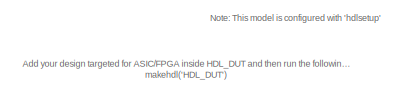
[diagram: root canvas - part 1/4, top center region]
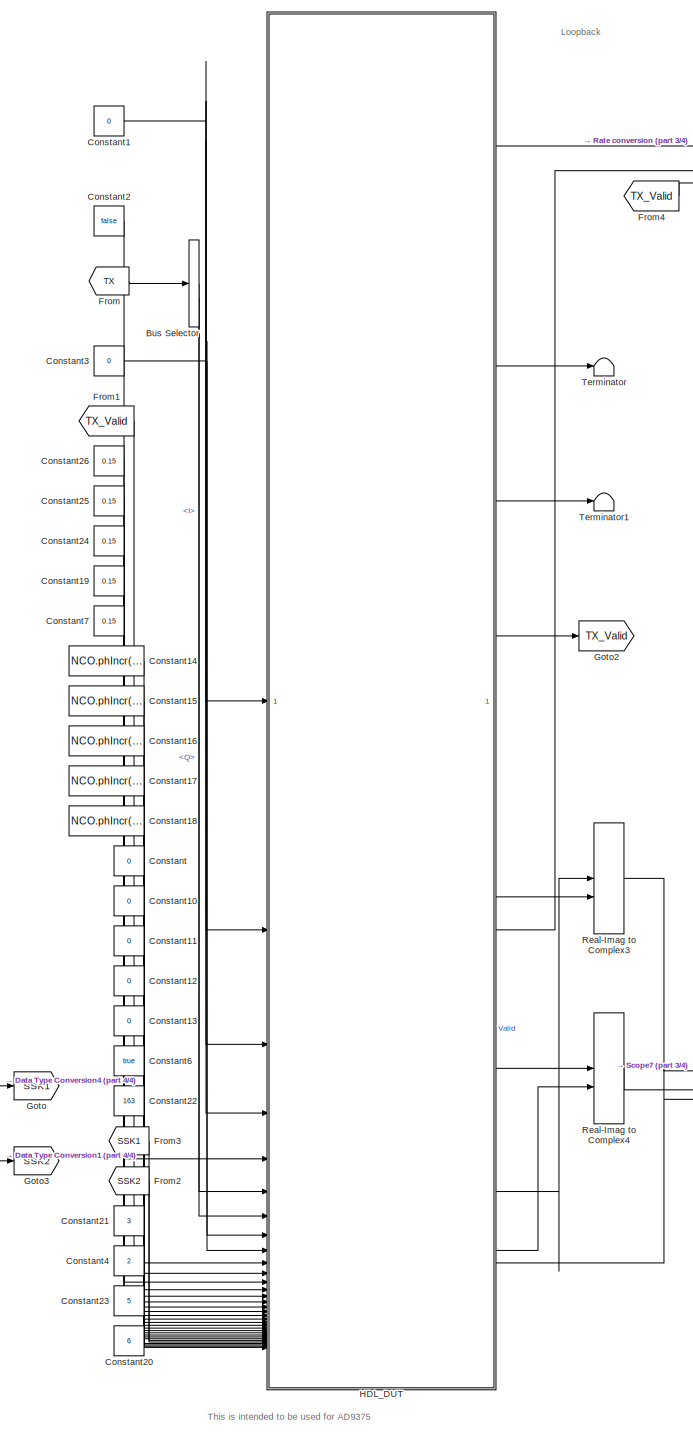
[diagram: root canvas - part 2/4, center side, full height]
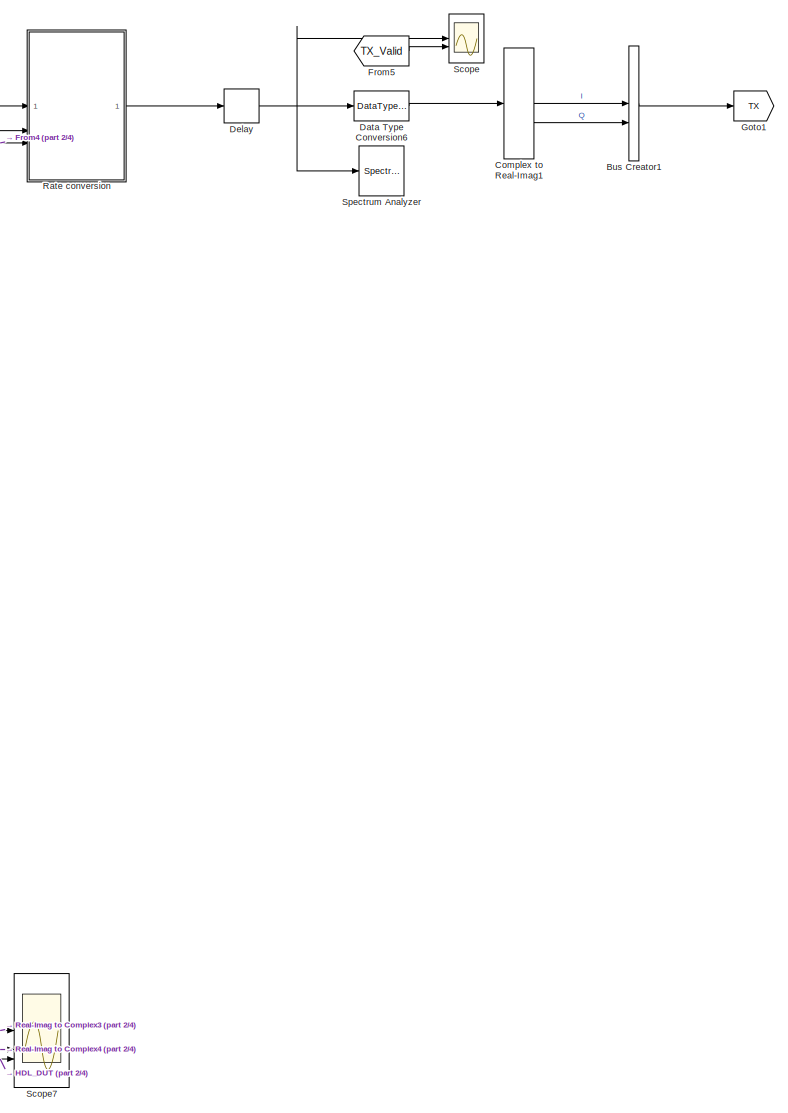
[diagram: root canvas - part 3/4, middle right region]
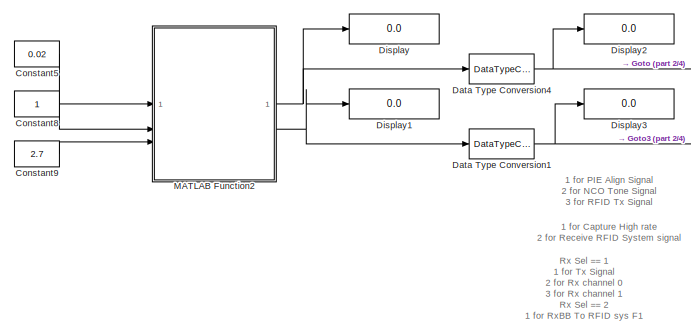
[diagram: root canvas - part 4/4, bottom left region]
MODEL slx_60dc93076b3d
KIND model
CONFIG AbsTol = auto
CONFIG EnableMultiTasking = off
CONFIG FixedStep = auto
CONFIG InitFcn = Initialize;
CONFIG MaxStep = auto
CONFIG MinStep = auto
CONFIG RelTol = 1e-3
CONFIG SampleTimeConstraint = Unconstrained
CONFIG SolverName = FixedStepDiscrete
CONFIG StartTime = 0.0
CONFIG StopTime = 5e5*SAMPLE_TIME
BLOCK [BusCreator] Bus Creator1
  DisplayOption = bar
  InheritFromInputs = on
  Inputs = 2
BLOCK [BusSelector] Bus Selector
  OutputSignals = I,Q
BLOCK [ComplexToRealImag] Complex to Real-Imag1
BLOCK [Constant] Constant
  OutDataTypeStr = uint32
  SampleTime = SAMPLE_TIME
  Value = 0
BLOCK [Constant] Constant1
  OutDataTypeStr = uint32
  SampleTime = SAMPLE_TIME
  Value = 0
BLOCK [Constant] Constant10
  OutDataTypeStr = uint32
  SampleTime = SAMPLE_TIME
  Value = 0
BLOCK [Constant] Constant11
  OutDataTypeStr = uint32
  SampleTime = SAMPLE_TIME
  Value = 0
BLOCK [Constant] Constant12
  OutDataTypeStr = uint32
  SampleTime = SAMPLE_TIME
  Value = 0
BLOCK [Constant] Constant13
  OutDataTypeStr = uint32
  SampleTime = SAMPLE_TIME
  Value = 0
BLOCK [Constant] Constant14
  OutDataTypeStr = int32
  SampleTime = SAMPLE_TIME
  Value = NCO.phIncr(1)
BLOCK [Constant] Constant15
  OutDataTypeStr = int32
  SampleTime = SAMPLE_TIME
  Value = NCO.phIncr(2)
BLOCK [Constant] Constant16
  OutDataTypeStr = int32
  SampleTime = SAMPLE_TIME
  Value = NCO.phIncr(3)
BLOCK [Constant] Constant17
  OutDataTypeStr = int32
  SampleTime = SAMPLE_TIME
  Value = NCO.phIncr(4)
BLOCK [Constant] Constant18
  OutDataTypeStr = int32
  SampleTime = SAMPLE_TIME
  Value = NCO.phIncr(5)
BLOCK [Constant] Constant19
  OutDataTypeStr = fixdt(1,16,15)
  SampleTime = SAMPLE_TIME
  Value = 0.15
BLOCK [Constant] Constant2
  OutDataTypeStr = boolean
  SampleTime = SAMPLE_TIME
  Value = false
BLOCK [Constant] Constant20
  OutDataTypeStr = uint32
  SampleTime = SAMPLE_TIME
  Value = 6
BLOCK [Constant] Constant21
  OutDataTypeStr = uint32
  SampleTime = SAMPLE_TIME
  Value = 3
BLOCK [Constant] Constant22
  OutDataTypeStr = uint32
  SampleTime = SAMPLE_TIME
  Value = 163
BLOCK [Constant] Constant23
  OutDataTypeStr = uint32
  SampleTime = SAMPLE_TIME
  Value = 5
BLOCK [Constant] Constant24
  OutDataTypeStr = fixdt(1,16,15)
  SampleTime = SAMPLE_TIME
  Value = 0.15
BLOCK [Constant] Constant25
  OutDataTypeStr = fixdt(1,16,15)
  SampleTime = SAMPLE_TIME
  Value = 0.15
BLOCK [Constant] Constant26
  OutDataTypeStr = fixdt(1,16,15)
  SampleTime = SAMPLE_TIME
  Value = 0.15
BLOCK [Constant] Constant3
  OutDataTypeStr = int16
  SampleTime = SAMPLE_TIME
  Value = 0
BLOCK [Constant] Constant4
  OutDataTypeStr = uint32
  SampleTime = SAMPLE_TIME
  Value = 2
BLOCK [Constant] Constant5
  SampleTime = SAMPLE_TIME
  Value = 0.02
BLOCK [Constant] Constant6
  OutDataTypeStr = boolean
  SampleTime = SAMPLE_TIME
  Value = true
BLOCK [Constant] Constant7
  OutDataTypeStr = fixdt(1,16,15)
  SampleTime = SAMPLE_TIME
  Value = 0.15
BLOCK [Constant] Constant8
  SampleTime = SAMPLE_TIME
BLOCK [Constant] Constant9
  SampleTime = SAMPLE_TIME
  Value = 2.7
BLOCK [DataTypeConversion] Data Type Conversion1
  OutDataTypeStr = fixdt(1,16,15)
  RndMeth = Floor
  SaturateOnIntegerOverflow = off
BLOCK [DataTypeConversion] Data Type Conversion4
  OutDataTypeStr = fixdt(1,16,15)
  RndMeth = Floor
  SaturateOnIntegerOverflow = off
BLOCK [DataTypeConversion] Data Type Conversion6
  ConvertRealWorld = Stored Integer (SI)
  OutDataTypeStr = int16
  RndMeth = Floor
  SaturateOnIntegerOverflow = off
BLOCK [Delay] Delay
  DelayLength = 100
  InputPortMap = u0
BLOCK [Display] Display
  Decimation = 1
BLOCK [Display] Display1
  Decimation = 1
BLOCK [Display] Display2
  Decimation = 1
BLOCK [Display] Display3
  Decimation = 1
BLOCK [From] From
  GotoTag = TX
BLOCK [From] From1
  GotoTag = TX_Valid
BLOCK [From] From2
  GotoTag = SSK2
BLOCK [From] From3
  GotoTag = SSK1
BLOCK [From] From4
  GotoTag = TX_Valid
BLOCK [From] From5
  GotoTag = TX_Valid
BLOCK [Goto] Goto
  GotoTag = SSK1
BLOCK [Goto] Goto1
  GotoTag = TX
BLOCK [Goto] Goto2
  GotoTag = TX_Valid
BLOCK [Goto] Goto3
  GotoTag = SSK2
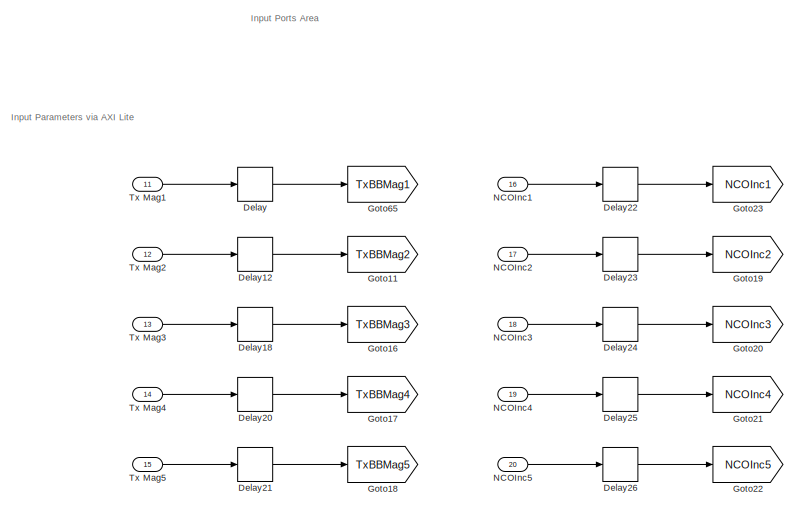
[diagram: HDL_DUT - part 1/17, top center region]
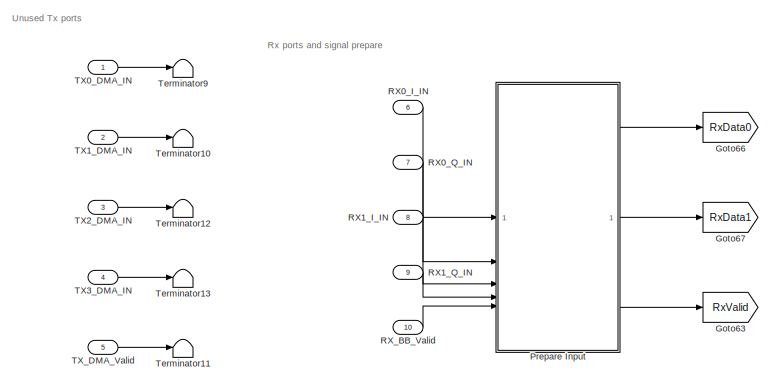
[diagram: HDL_DUT - part 2/17, top left region]
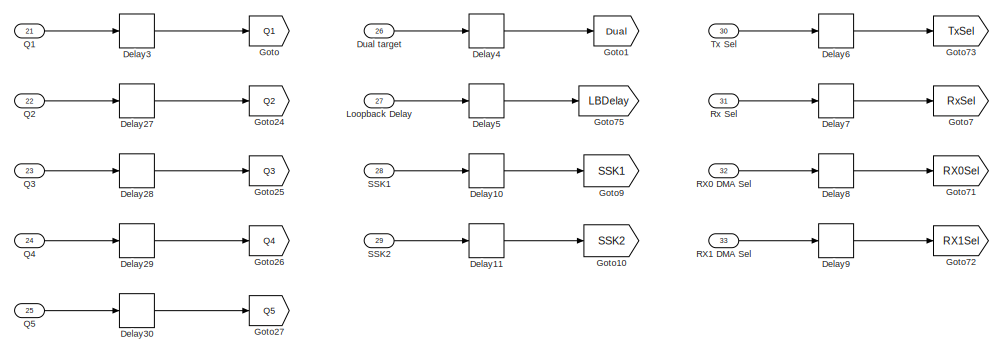
[diagram: HDL_DUT - part 3/17, top center region]
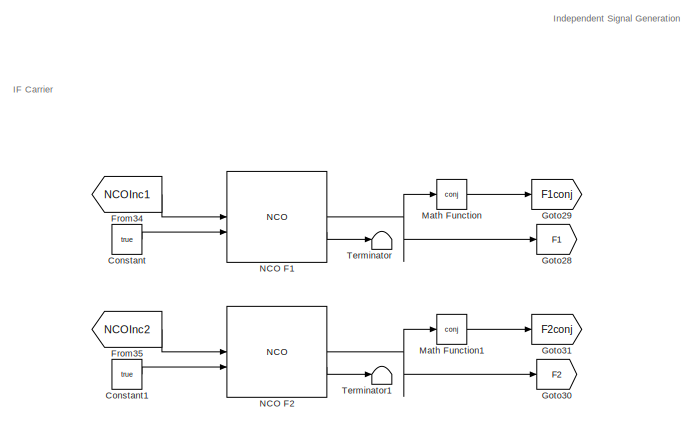
[diagram: HDL_DUT - part 4/17, top left region]
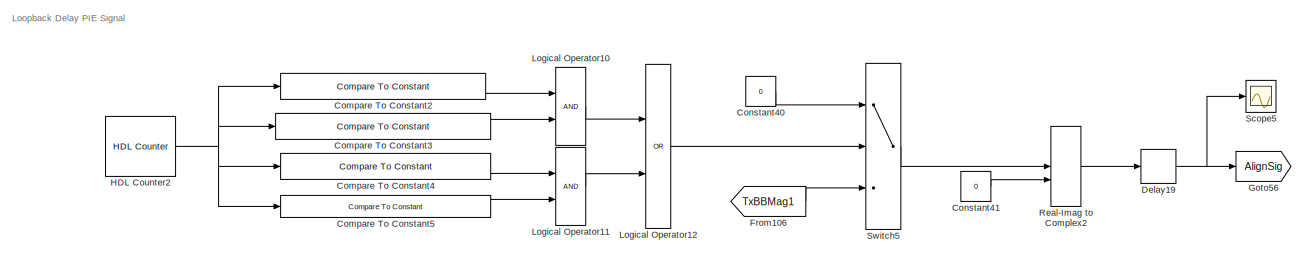
[diagram: HDL_DUT - part 5/17, top center region]
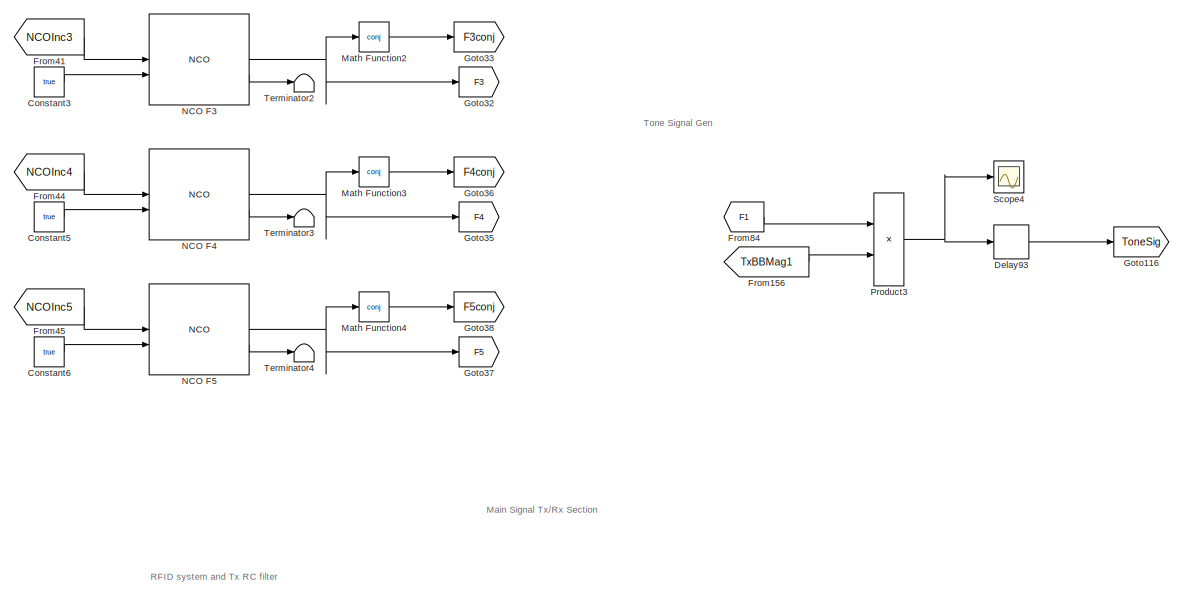
[diagram: HDL_DUT - part 6/17, top left region]
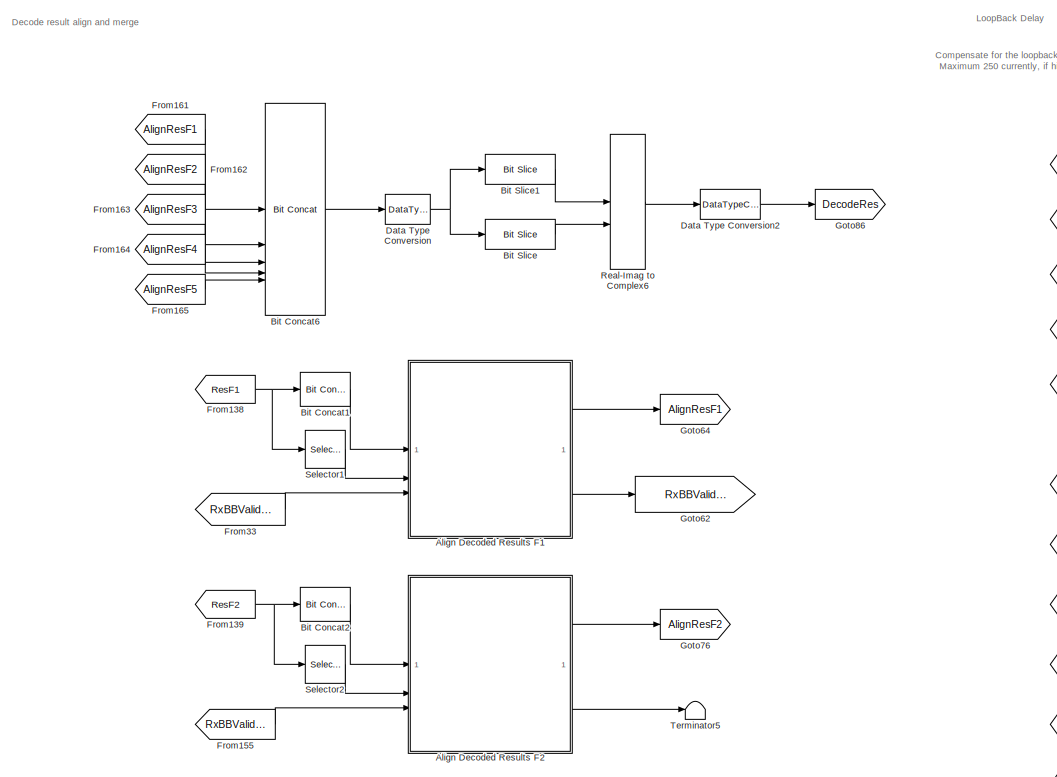
[diagram: HDL_DUT - part 7/17, central region]
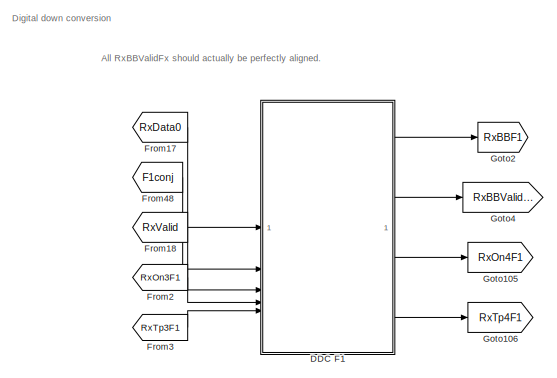
[diagram: HDL_DUT - part 8/17, middle left region]
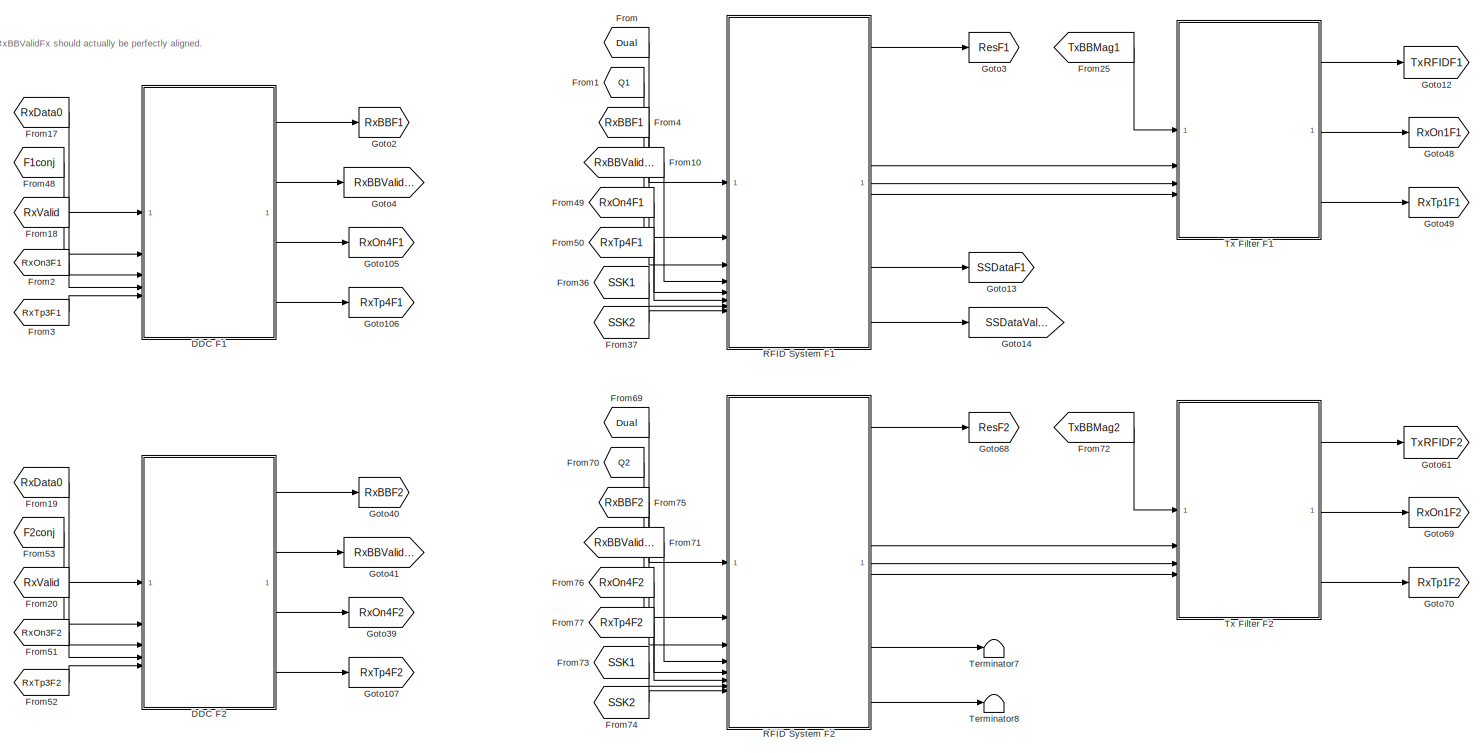
[diagram: HDL_DUT - part 9/17, middle left region]
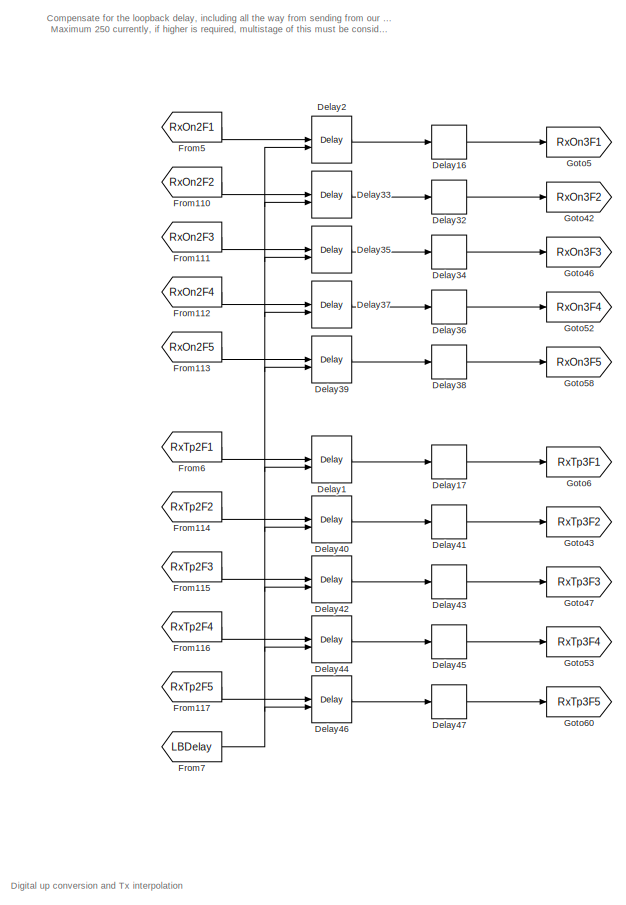
[diagram: HDL_DUT - part 10/17, middle right region]
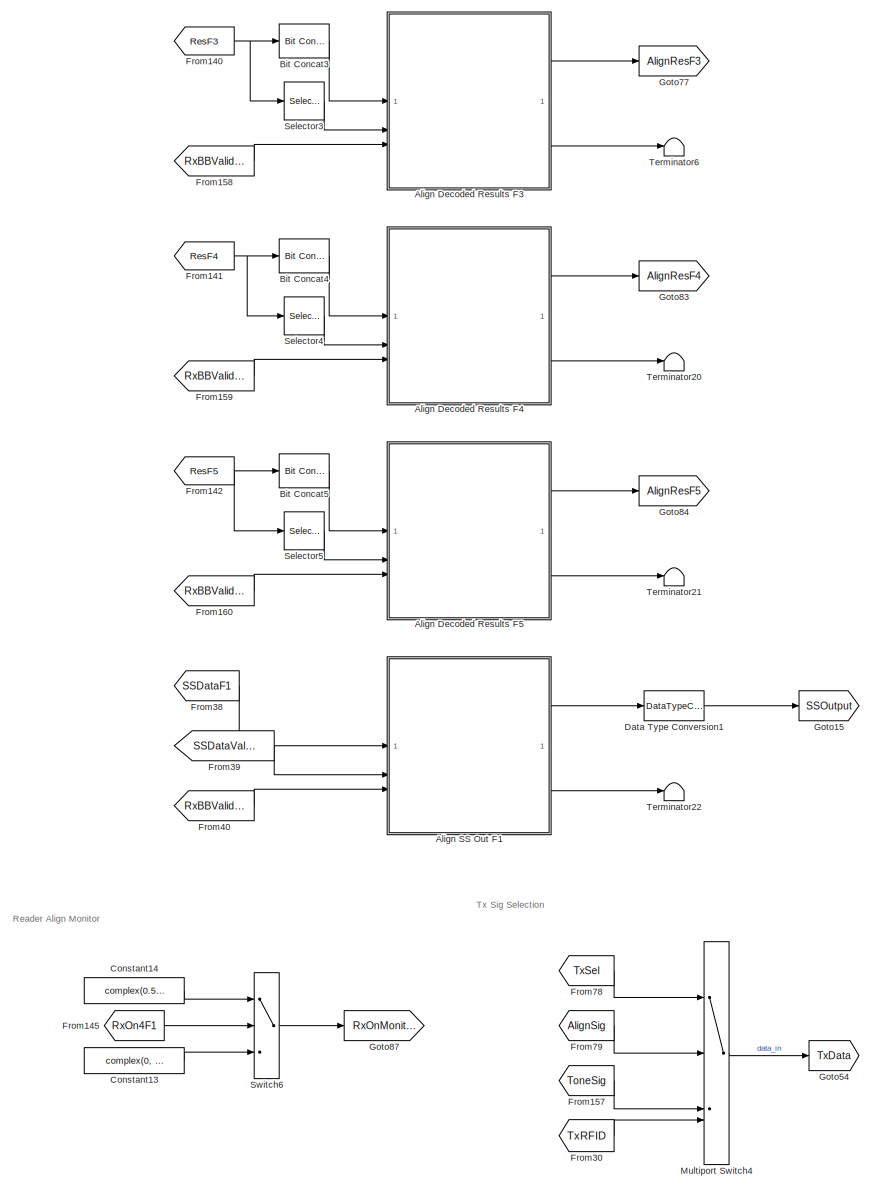
[diagram: HDL_DUT - part 11/17, central region]
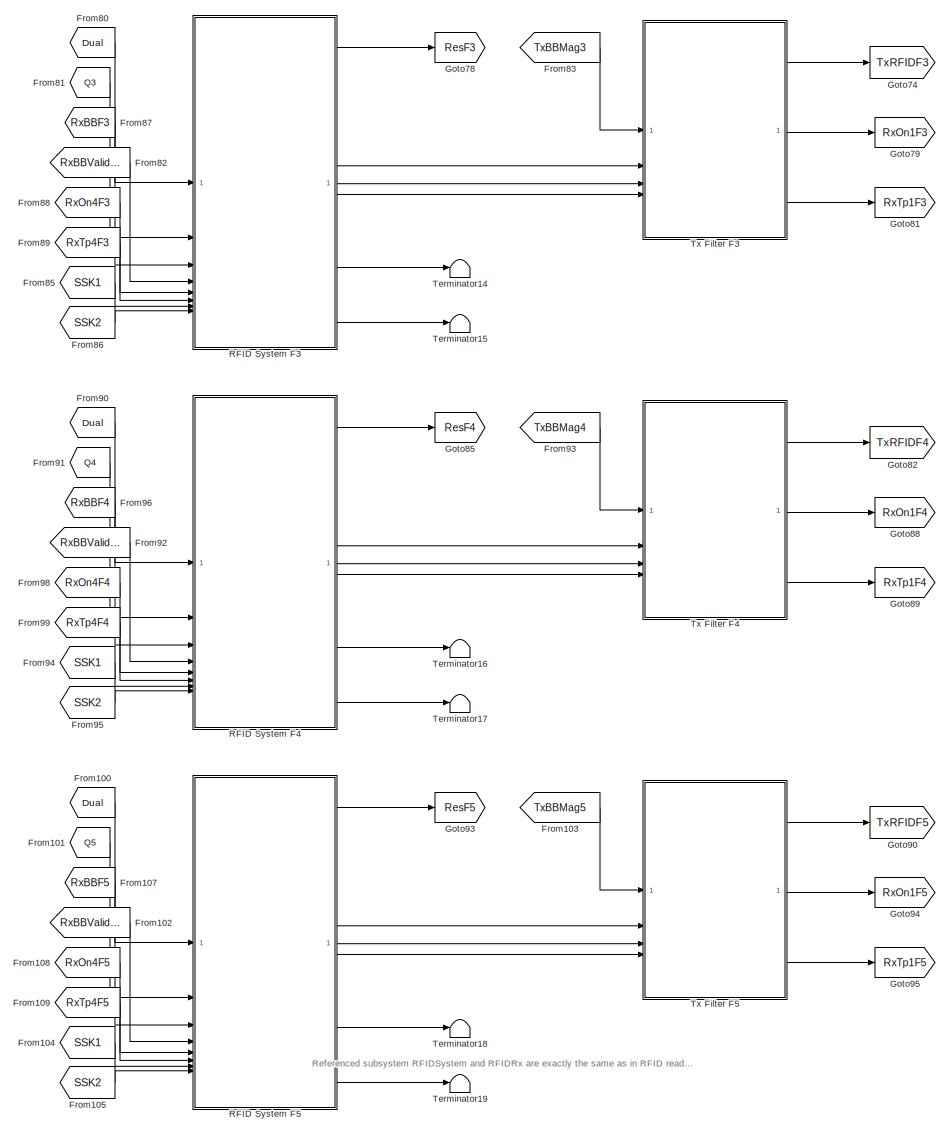
[diagram: HDL_DUT - part 12/17, middle left region]
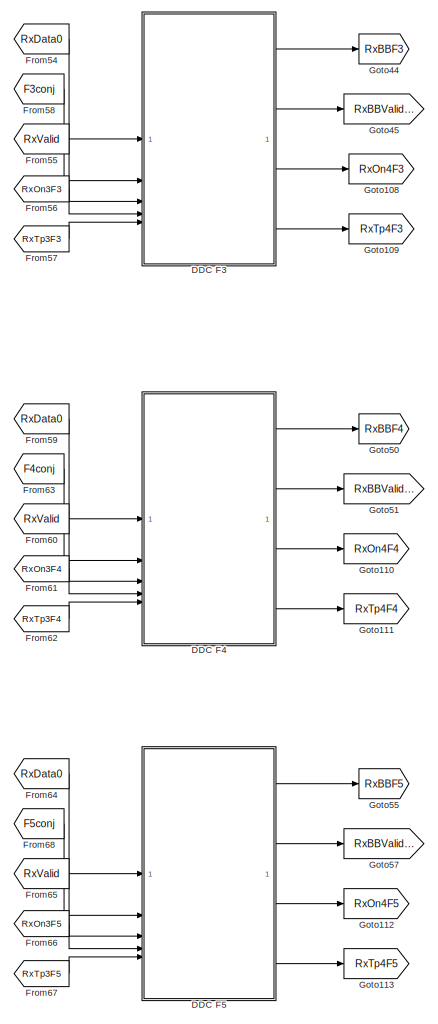
[diagram: HDL_DUT - part 13/17, middle left region]
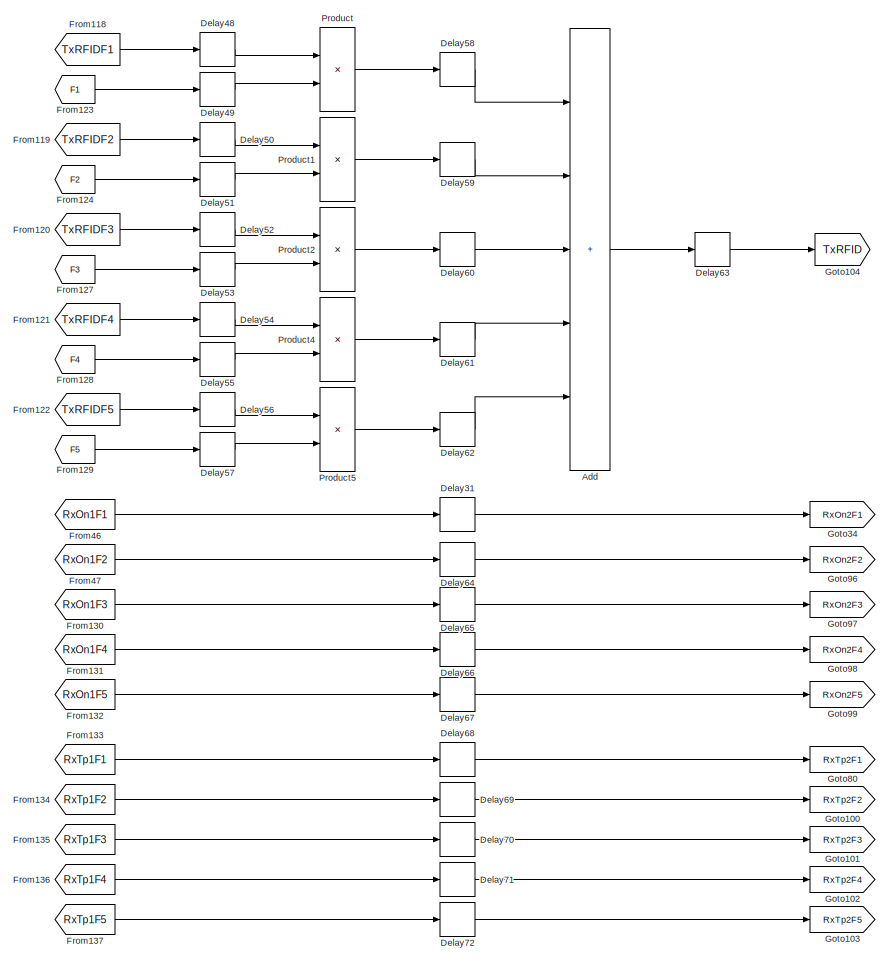
[diagram: HDL_DUT - part 14/17, bottom right region]
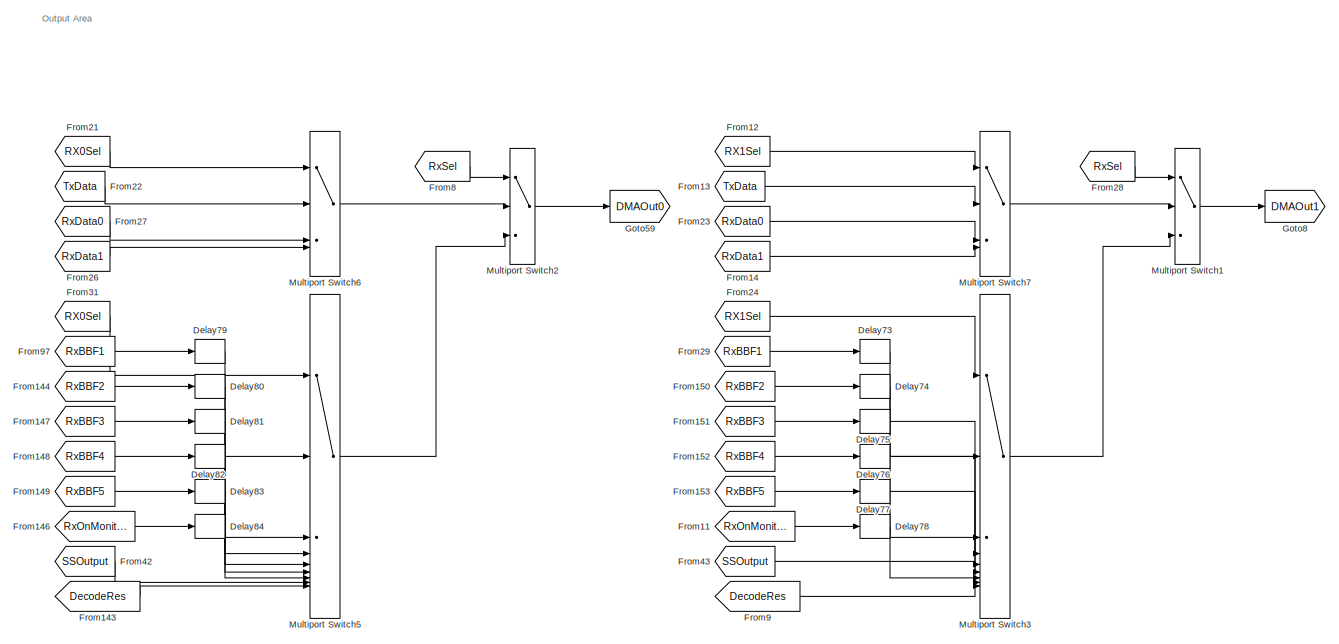
[diagram: HDL_DUT - part 15/17, bottom center region]
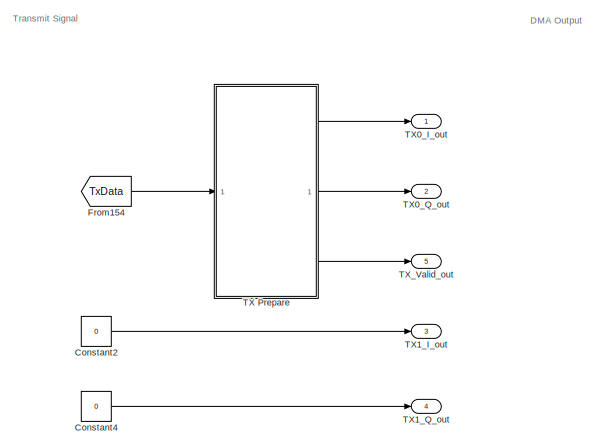
[diagram: HDL_DUT - part 16/17, bottom left region]
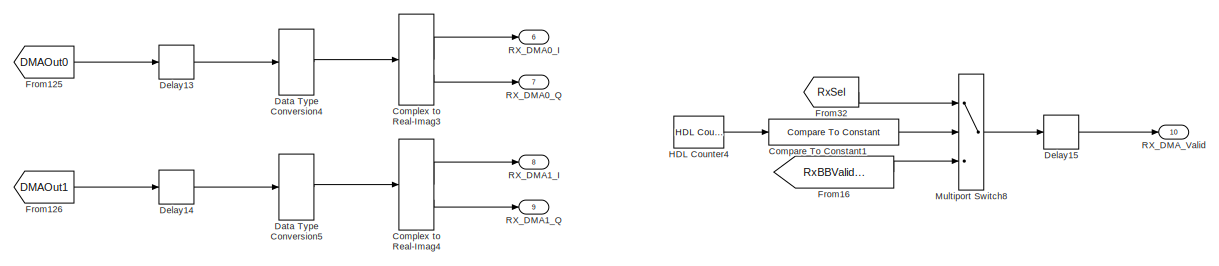
[diagram: HDL_DUT - part 17/17, bottom center region]
BLOCK [SubSystem] HDL_DUT
  NameLocation = top
  TreatAsAtomicUnit = on
BLOCK [Sum] HDL_DUT/Add
  IconShape = rectangular
  Inputs = +++++
  OutDataTypeStr = fixdt(1,16,15)
  RndMeth = Round
  SaturateOnIntegerOverflow = on
BLOCK [SubSystem] HDL_DUT/Align Decoded Results F1
  ReferencedSubsystem = Lib_AlignAsyncSignal
BLOCK [SubSystem] HDL_DUT/Align Decoded Results F2
  ReferencedSubsystem = Lib_AlignAsyncSignal
BLOCK [SubSystem] HDL_DUT/Align Decoded Results F3
  ReferencedSubsystem = Lib_AlignAsyncSignal
BLOCK [SubSystem] HDL_DUT/Align Decoded Results F4
  ReferencedSubsystem = Lib_AlignAsyncSignal
BLOCK [SubSystem] HDL_DUT/Align Decoded Results F5
  ReferencedSubsystem = Lib_AlignAsyncSignal
BLOCK [SubSystem] HDL_DUT/Align SS Out F1
  ReferencedSubsystem = Lib_AlignAsyncSignal
BLOCK [Reference] HDL_DUT/Bit Concat1  REF=hdlsllib/Logic and Bit
Operations/Bit Concat
  SourceBlock = hdlsllib/Logic and Bit\nOperations/Bit Concat
  SourceType = Bit Concat
BLOCK [Reference] HDL_DUT/Bit Concat2  REF=hdlsllib/Logic and Bit
Operations/Bit Concat
  SourceBlock = hdlsllib/Logic and Bit\nOperations/Bit Concat
  SourceType = Bit Concat
BLOCK [Reference] HDL_DUT/Bit Concat3  REF=hdlsllib/Logic and Bit
Operations/Bit Concat
  SourceBlock = hdlsllib/Logic and Bit\nOperations/Bit Concat
  SourceType = Bit Concat
BLOCK [Reference] HDL_DUT/Bit Concat4  REF=hdlsllib/Logic and Bit
Operations/Bit Concat
  SourceBlock = hdlsllib/Logic and Bit\nOperations/Bit Concat
  SourceType = Bit Concat
BLOCK [Reference] HDL_DUT/Bit Concat5  REF=hdlsllib/Logic and Bit
Operations/Bit Concat
  SourceBlock = hdlsllib/Logic and Bit\nOperations/Bit Concat
  SourceType = Bit Concat
BLOCK [Reference] HDL_DUT/Bit Concat6  REF=hdlsllib/Logic and Bit
Operations/Bit Concat
  SourceBlock = hdlsllib/Logic and Bit\nOperations/Bit Concat
  SourceType = Bit Concat
BLOCK [Reference] HDL_DUT/Bit Slice  REF=hdlsllib/Logic and Bit
Operations/Bit Slice
  SourceBlock = hdlsllib/Logic and Bit\nOperations/Bit Slice
  SourceType = Bit Slice
BLOCK [Reference] HDL_DUT/Bit Slice1  REF=hdlsllib/Logic and Bit
Operations/Bit Slice
  SourceBlock = hdlsllib/Logic and Bit\nOperations/Bit Slice
  SourceType = Bit Slice
BLOCK [Reference] HDL_DUT/Compare To Constant1  REF=simulink/Logic and Bit
Operations/Compare
To Constant
  SourceBlock = simulink/Logic and Bit\nOperations/Compare\nTo Constant
  SourceType = Compare To Constant
BLOCK [Reference] HDL_DUT/Compare To Constant2  REF=simulink/Logic and Bit
Operations/Compare
To Constant
  SourceBlock = simulink/Logic and Bit\nOperations/Compare\nTo Constant
  SourceType = Compare To Constant
BLOCK [Reference] HDL_DUT/Compare To Constant3  REF=simulink/Logic and Bit
Operations/Compare
To Constant
  SourceBlock = simulink/Logic and Bit\nOperations/Compare\nTo Constant
  SourceType = Compare To Constant
BLOCK [Reference] HDL_DUT/Compare To Constant4  REF=simulink/Logic and Bit
Operations/Compare
To Constant
  SourceBlock = simulink/Logic and Bit\nOperations/Compare\nTo Constant
  SourceType = Compare To Constant
BLOCK [Reference] HDL_DUT/Compare To Constant5  REF=simulink/Logic and Bit
Operations/Compare
To Constant
  SourceBlock = simulink/Logic and Bit\nOperations/Compare\nTo Constant
  SourceType = Compare To Constant
BLOCK [ComplexToRealImag] HDL_DUT/Complex to Real-Imag3
BLOCK [ComplexToRealImag] HDL_DUT/Complex to Real-Imag4
BLOCK [Constant] HDL_DUT/Constant
  OutDataTypeStr = boolean
  SampleTime = SAMPLE_TIME
  Value = true
BLOCK [Constant] HDL_DUT/Constant1
  OutDataTypeStr = boolean
  SampleTime = SAMPLE_TIME
  Value = true
BLOCK [Constant] HDL_DUT/Constant13
  OutDataTypeStr = fixdt(1,16,15)
  SampleTime = SAMPLE_TIME
  Value = complex(0, 0)
BLOCK [Constant] HDL_DUT/Constant14
  OutDataTypeStr = fixdt(1,16,15)
  SampleTime = SAMPLE_TIME
  Value = complex(0.5, 0)
BLOCK [Constant] HDL_DUT/Constant2
  OutDataTypeStr = uint32
  SampleTime = SAMPLE_TIME
  Value = 0
BLOCK [Constant] HDL_DUT/Constant3
  OutDataTypeStr = boolean
  SampleTime = SAMPLE_TIME
  Value = true
BLOCK [Constant] HDL_DUT/Constant4
  OutDataTypeStr = uint32
  SampleTime = SAMPLE_TIME
  Value = 0
BLOCK [Constant] HDL_DUT/Constant40
  OutDataTypeStr = fixdt(1,16,15)
  SampleTime = SAMPLE_TIME
  Value = 0
BLOCK [Constant] HDL_DUT/Constant41
  OutDataTypeStr = fixdt(1,16,15)
  SampleTime = SAMPLE_TIME
  Value = 0
BLOCK [Constant] HDL_DUT/Constant5
  OutDataTypeStr = boolean
  SampleTime = SAMPLE_TIME
  Value = true
BLOCK [Constant] HDL_DUT/Constant6
  OutDataTypeStr = boolean
  SampleTime = SAMPLE_TIME
  Value = true
BLOCK [SubSystem] HDL_DUT/DDC F1
  ReferencedSubsystem = Lib_QuinIDRxDDC
BLOCK [SubSystem] HDL_DUT/DDC F2
  ReferencedSubsystem = Lib_QuinIDRxDDC
BLOCK [SubSystem] HDL_DUT/DDC F3
  ReferencedSubsystem = Lib_QuinIDRxDDC
BLOCK [SubSystem] HDL_DUT/DDC F4
  ReferencedSubsystem = Lib_QuinIDRxDDC
BLOCK [SubSystem] HDL_DUT/DDC F5
  ReferencedSubsystem = Lib_QuinIDRxDDC
BLOCK [DataTypeConversion] HDL_DUT/Data Type Conversion
  OutDataTypeStr = uint32
  RndMeth = Floor
  SaturateOnIntegerOverflow = off
BLOCK [DataTypeConversion] HDL_DUT/Data Type Conversion1
  ConvertRealWorld = Stored Integer (SI)
  OutDataTypeStr = fixdt(1,16,15)
  RndMeth = Floor
  SaturateOnIntegerOverflow = off
BLOCK [DataTypeConversion] HDL_DUT/Data Type Conversion2
  ConvertRealWorld = Stored Integer (SI)
  OutDataTypeStr = fixdt(1,16,15)
  RndMeth = Floor
  SaturateOnIntegerOverflow = off
BLOCK [DataTypeConversion] HDL_DUT/Data Type Conversion4
  ConvertRealWorld = Stored Integer (SI)
  OutDataTypeStr = int16
  RndMeth = Floor
  SaturateOnIntegerOverflow = off
BLOCK [DataTypeConversion] HDL_DUT/Data Type Conversion5
  ConvertRealWorld = Stored Integer (SI)
  OutDataTypeStr = int16
  RndMeth = Floor
  SaturateOnIntegerOverflow = off
BLOCK [Delay] HDL_DUT/Delay
  InputPortMap = u0
BLOCK [Delay] HDL_DUT/Delay1
  DelayLengthSource = Input port
  DelayLengthUpperLimit = 250
  DiagnosticForDelayLength = Error
  InitialCondition = ReaderReceive.RN16
  InputPortMap = u0,p1
  UseCircularBuffer = on
BLOCK [Delay] HDL_DUT/Delay10
  InputPortMap = u0
BLOCK [Delay] HDL_DUT/Delay11
  InputPortMap = u0
BLOCK [Delay] HDL_DUT/Delay12
  InputPortMap = u0
BLOCK [Delay] HDL_DUT/Delay13
  DelayLength = 1
  InputPortMap = u0
BLOCK [Delay] HDL_DUT/Delay14
  DelayLength = 1
  InputPortMap = u0
BLOCK [Delay] HDL_DUT/Delay15
  DelayLength = 1
  InitialCondition = false
  InputPortMap = u0
BLOCK [Delay] HDL_DUT/Delay16
  DelayLength = 1
  InitialCondition = false
  InputPortMap = u0
BLOCK [Delay] HDL_DUT/Delay17
  DelayLength = 1
  InitialCondition = ReaderReceive.RN16
  InputPortMap = u0
BLOCK [Delay] HDL_DUT/Delay18
  InputPortMap = u0
BLOCK [Delay] HDL_DUT/Delay19
  DelayLength = 1
  InputPortMap = u0
BLOCK [Delay] HDL_DUT/Delay2
  DelayLengthSource = Input port
  DelayLengthUpperLimit = 250
  DiagnosticForDelayLength = Error
  InitialCondition = false
  InputPortMap = u0,p1
  UseCircularBuffer = on
BLOCK [Delay] HDL_DUT/Delay20
  InputPortMap = u0
BLOCK [Delay] HDL_DUT/Delay21
  InputPortMap = u0
BLOCK [Delay] HDL_DUT/Delay22
  InputPortMap = u0
BLOCK [Delay] HDL_DUT/Delay23
  InputPortMap = u0
BLOCK [Delay] HDL_DUT/Delay24
  InputPortMap = u0
BLOCK [Delay] HDL_DUT/Delay25
  InputPortMap = u0
BLOCK [Delay] HDL_DUT/Delay26
  InputPortMap = u0
BLOCK [Delay] HDL_DUT/Delay27
  InputPortMap = u0
BLOCK [Delay] HDL_DUT/Delay28
  InputPortMap = u0
BLOCK [Delay] HDL_DUT/Delay29
  InputPortMap = u0
BLOCK [Delay] HDL_DUT/Delay3
  InputPortMap = u0
BLOCK [Delay] HDL_DUT/Delay30
  InputPortMap = u0
BLOCK [Delay] HDL_DUT/Delay31
  DelayLength = 3
  InitialCondition = false
  InputPortMap = u0
BLOCK [Delay] HDL_DUT/Delay32
  DelayLength = 1
  InitialCondition = false
  InputPortMap = u0
BLOCK [Delay] HDL_DUT/Delay33
  DelayLengthSource = Input port
  DelayLengthUpperLimit = 250
  DiagnosticForDelayLength = Error
  InitialCondition = false
  InputPortMap = u0,p1
  UseCircularBuffer = on
BLOCK [Delay] HDL_DUT/Delay34
  DelayLength = 1
  InitialCondition = false
  InputPortMap = u0
BLOCK [Delay] HDL_DUT/Delay35
  DelayLengthSource = Input port
  DelayLengthUpperLimit = 250
  DiagnosticForDelayLength = Error
  InitialCondition = false
  InputPortMap = u0,p1
  UseCircularBuffer = on
BLOCK [Delay] HDL_DUT/Delay36
  DelayLength = 1
  InitialCondition = false
  InputPortMap = u0
BLOCK [Delay] HDL_DUT/Delay37
  DelayLengthSource = Input port
  DelayLengthUpperLimit = 250
  DiagnosticForDelayLength = Error
  InitialCondition = false
  InputPortMap = u0,p1
  UseCircularBuffer = on
BLOCK [Delay] HDL_DUT/Delay38
  DelayLength = 1
  InitialCondition = false
  InputPortMap = u0
BLOCK [Delay] HDL_DUT/Delay39
  DelayLengthSource = Input port
  DelayLengthUpperLimit = 250
  DiagnosticForDelayLength = Error
  InitialCondition = false
  InputPortMap = u0,p1
  UseCircularBuffer = on
BLOCK [Delay] HDL_DUT/Delay4
  InputPortMap = u0
BLOCK [Delay] HDL_DUT/Delay40
  DelayLengthSource = Input port
  DelayLengthUpperLimit = 250
  DiagnosticForDelayLength = Error
  InitialCondition = ReaderReceive.RN16
  InputPortMap = u0,p1
  UseCircularBuffer = on
BLOCK [Delay] HDL_DUT/Delay41
  DelayLength = 1
  InitialCondition = ReaderReceive.RN16
  InputPortMap = u0
BLOCK [Delay] HDL_DUT/Delay42
  DelayLengthSource = Input port
  DelayLengthUpperLimit = 250
  DiagnosticForDelayLength = Error
  InitialCondition = ReaderReceive.RN16
  InputPortMap = u0,p1
  UseCircularBuffer = on
BLOCK [Delay] HDL_DUT/Delay43
  DelayLength = 1
  InitialCondition = ReaderReceive.RN16
  InputPortMap = u0
BLOCK [Delay] HDL_DUT/Delay44
  DelayLengthSource = Input port
  DelayLengthUpperLimit = 250
  DiagnosticForDelayLength = Error
  InitialCondition = ReaderReceive.RN16
  InputPortMap = u0,p1
  UseCircularBuffer = on
BLOCK [Delay] HDL_DUT/Delay45
  DelayLength = 1
  InitialCondition = ReaderReceive.RN16
  InputPortMap = u0
BLOCK [Delay] HDL_DUT/Delay46
  DelayLengthSource = Input port
  DelayLengthUpperLimit = 250
  DiagnosticForDelayLength = Error
  InitialCondition = ReaderReceive.RN16
  InputPortMap = u0,p1
  UseCircularBuffer = on
BLOCK [Delay] HDL_DUT/Delay47
  DelayLength = 1
  InitialCondition = ReaderReceive.RN16
  InputPortMap = u0
BLOCK [Delay] HDL_DUT/Delay48
  DelayLength = 1
  InputPortMap = u0
BLOCK [Delay] HDL_DUT/Delay49
  DelayLength = 1
  InputPortMap = u0
BLOCK [Delay] HDL_DUT/Delay5
  InputPortMap = u0
BLOCK [Delay] HDL_DUT/Delay50
  DelayLength = 1
  InputPortMap = u0
BLOCK [Delay] HDL_DUT/Delay51
  DelayLength = 1
  InputPortMap = u0
BLOCK [Delay] HDL_DUT/Delay52
  DelayLength = 1
  InputPortMap = u0
BLOCK [Delay] HDL_DUT/Delay53
  DelayLength = 1
  InputPortMap = u0
BLOCK [Delay] HDL_DUT/Delay54
  DelayLength = 1
  InputPortMap = u0
BLOCK [Delay] HDL_DUT/Delay55
  DelayLength = 1
  InputPortMap = u0
BLOCK [Delay] HDL_DUT/Delay56
  DelayLength = 1
  InputPortMap = u0
BLOCK [Delay] HDL_DUT/Delay57
  DelayLength = 1
  InputPortMap = u0
BLOCK [Delay] HDL_DUT/Delay58
  DelayLength = 1
  InputPortMap = u0
BLOCK [Delay] HDL_DUT/Delay59
  DelayLength = 1
  InputPortMap = u0
BLOCK [Delay] HDL_DUT/Delay6
  InputPortMap = u0
BLOCK [Delay] HDL_DUT/Delay60
  DelayLength = 1
  InputPortMap = u0
BLOCK [Delay] HDL_DUT/Delay61
  DelayLength = 1
  InputPortMap = u0
BLOCK [Delay] HDL_DUT/Delay62
  DelayLength = 1
  InputPortMap = u0
BLOCK [Delay] HDL_DUT/Delay63
  DelayLength = 1
  InputPortMap = u0
BLOCK [Delay] HDL_DUT/Delay64
  DelayLength = 3
  InitialCondition = false
  InputPortMap = u0
BLOCK [Delay] HDL_DUT/Delay65
  DelayLength = 3
  InitialCondition = false
  InputPortMap = u0
BLOCK [Delay] HDL_DUT/Delay66
  DelayLength = 3
  InitialCondition = false
  InputPortMap = u0
BLOCK [Delay] HDL_DUT/Delay67
  DelayLength = 3
  InitialCondition = false
  InputPortMap = u0
BLOCK [Delay] HDL_DUT/Delay68
  DelayLength = 3
  InitialCondition = ReaderReceive.RN16
  InputPortMap = u0
BLOCK [Delay] HDL_DUT/Delay69
  DelayLength = 3
  InitialCondition = ReaderReceive.RN16
  InputPortMap = u0
BLOCK [Delay] HDL_DUT/Delay7
  InputPortMap = u0
BLOCK [Delay] HDL_DUT/Delay70
  DelayLength = 3
  InitialCondition = ReaderReceive.RN16
  InputPortMap = u0
BLOCK [Delay] HDL_DUT/Delay71
  DelayLength = 3
  InitialCondition = ReaderReceive.RN16
  InputPortMap = u0
BLOCK [Delay] HDL_DUT/Delay72
  DelayLength = 3
  InitialCondition = ReaderReceive.RN16
  InputPortMap = u0
BLOCK [Delay] HDL_DUT/Delay73
  DelayLength = 1
  InputPortMap = u0
BLOCK [Delay] HDL_DUT/Delay74
  DelayLength = 1
  InputPortMap = u0
BLOCK [Delay] HDL_DUT/Delay75
  DelayLength = 1
  InputPortMap = u0
BLOCK [Delay] HDL_DUT/Delay76
  DelayLength = 1
  InputPortMap = u0
BLOCK [Delay] HDL_DUT/Delay77
  DelayLength = 1
  InputPortMap = u0
BLOCK [Delay] HDL_DUT/Delay78
  DelayLength = 1
  InputPortMap = u0
BLOCK [Delay] HDL_DUT/Delay79
  DelayLength = 1
  InputPortMap = u0
BLOCK [Delay] HDL_DUT/Delay8
  InputPortMap = u0
BLOCK [Delay] HDL_DUT/Delay80
  DelayLength = 1
  InputPortMap = u0
BLOCK [Delay] HDL_DUT/Delay81
  DelayLength = 1
  InputPortMap = u0
BLOCK [Delay] HDL_DUT/Delay82
  DelayLength = 1
  InputPortMap = u0
BLOCK [Delay] HDL_DUT/Delay83
  DelayLength = 1
  InputPortMap = u0
BLOCK [Delay] HDL_DUT/Delay84
  DelayLength = 1
  InputPortMap = u0
BLOCK [Delay] HDL_DUT/Delay9
  InputPortMap = u0
BLOCK [Delay] HDL_DUT/Delay93
  DelayLength = 1
  InputPortMap = u0
BLOCK [Inport] HDL_DUT/Dual target
  Port = 26
BLOCK [From] HDL_DUT/From
  GotoTag = Dual
BLOCK [From] HDL_DUT/From1
  GotoTag = Q1
BLOCK [From] HDL_DUT/From10
  GotoTag = RxBBValidF1
BLOCK [From] HDL_DUT/From100
  GotoTag = Dual
BLOCK [From] HDL_DUT/From101
  GotoTag = Q5
BLOCK [From] HDL_DUT/From102
  GotoTag = RxBBValidF5
BLOCK [From] HDL_DUT/From103
  GotoTag = TxBBMag5
BLOCK [From] HDL_DUT/From104
  GotoTag = SSK1
BLOCK [From] HDL_DUT/From105
  GotoTag = SSK2
BLOCK [From] HDL_DUT/From106
  GotoTag = TxBBMag1
BLOCK [From] HDL_DUT/From107
  GotoTag = RxBBF5
BLOCK [From] HDL_DUT/From108
  GotoTag = RxOn4F5
BLOCK [From] HDL_DUT/From109
  GotoTag = RxTp4F5
BLOCK [From] HDL_DUT/From11
  GotoTag = RxOnMonitor
BLOCK [From] HDL_DUT/From110
  GotoTag = RxOn2F2
BLOCK [From] HDL_DUT/From111
  GotoTag = RxOn2F3
BLOCK [From] HDL_DUT/From112
  GotoTag = RxOn2F4
BLOCK [From] HDL_DUT/From113
  GotoTag = RxOn2F5
BLOCK [From] HDL_DUT/From114
  GotoTag = RxTp2F2
BLOCK [From] HDL_DUT/From115
  GotoTag = RxTp2F3
BLOCK [From] HDL_DUT/From116
  GotoTag = RxTp2F4
BLOCK [From] HDL_DUT/From117
  GotoTag = RxTp2F5
BLOCK [From] HDL_DUT/From118
  GotoTag = TxRFIDF1
BLOCK [From] HDL_DUT/From119
  GotoTag = TxRFIDF2
BLOCK [From] HDL_DUT/From12
  GotoTag = RX1Sel
BLOCK [From] HDL_DUT/From120
  GotoTag = TxRFIDF3
BLOCK [From] HDL_DUT/From121
  GotoTag = TxRFIDF4
BLOCK [From] HDL_DUT/From122
  GotoTag = TxRFIDF5
BLOCK [From] HDL_DUT/From123
  GotoTag = F1
BLOCK [From] HDL_DUT/From124
  GotoTag = F2
BLOCK [From] HDL_DUT/From125
  GotoTag = DMAOut0
BLOCK [From] HDL_DUT/From126
  GotoTag = DMAOut1
BLOCK [From] HDL_DUT/From127
  GotoTag = F3
BLOCK [From] HDL_DUT/From128
  GotoTag = F4
BLOCK [From] HDL_DUT/From129
  GotoTag = F5
BLOCK [From] HDL_DUT/From13
  GotoTag = TxData
BLOCK [From] HDL_DUT/From130
  GotoTag = RxOn1F3
BLOCK [From] HDL_DUT/From131
  GotoTag = RxOn1F4
BLOCK [From] HDL_DUT/From132
  GotoTag = RxOn1F5
BLOCK [From] HDL_DUT/From133
  GotoTag = RxTp1F1
BLOCK [From] HDL_DUT/From134
  GotoTag = RxTp1F2
BLOCK [From] HDL_DUT/From135
  GotoTag = RxTp1F3
BLOCK [From] HDL_DUT/From136
  GotoTag = RxTp1F4
BLOCK [From] HDL_DUT/From137
  GotoTag = RxTp1F5
BLOCK [From] HDL_DUT/From138
  GotoTag = ResF1
BLOCK [From] HDL_DUT/From139
  GotoTag = ResF2
BLOCK [From] HDL_DUT/From14
  GotoTag = RxData1
BLOCK [From] HDL_DUT/From140
  GotoTag = ResF3
BLOCK [From] HDL_DUT/From141
  GotoTag = ResF4
BLOCK [From] HDL_DUT/From142
  GotoTag = ResF5
BLOCK [From] HDL_DUT/From143
  GotoTag = DecodeRes
BLOCK [From] HDL_DUT/From144
  GotoTag = RxBBF2
BLOCK [From] HDL_DUT/From145
  GotoTag = RxOn4F1
BLOCK [From] HDL_DUT/From146
  GotoTag = RxOnMonitor
BLOCK [From] HDL_DUT/From147
  GotoTag = RxBBF3
BLOCK [From] HDL_DUT/From148
  GotoTag = RxBBF4
BLOCK [From] HDL_DUT/From149
  GotoTag = RxBBF5
BLOCK [From] HDL_DUT/From150
  GotoTag = RxBBF2
BLOCK [From] HDL_DUT/From151
  GotoTag = RxBBF3
BLOCK [From] HDL_DUT/From152
  GotoTag = RxBBF4
BLOCK [From] HDL_DUT/From153
  GotoTag = RxBBF5
BLOCK [From] HDL_DUT/From154
  GotoTag = TxData
BLOCK [From] HDL_DUT/From155
  GotoTag = RxBBValidF2
BLOCK [From] HDL_DUT/From156
  GotoTag = TxBBMag1
BLOCK [From] HDL_DUT/From157
  GotoTag = ToneSig
BLOCK [From] HDL_DUT/From158
  GotoTag = RxBBValidF3
BLOCK [From] HDL_DUT/From159
  GotoTag = RxBBValidF4
BLOCK [From] HDL_DUT/From16
  GotoTag = RxBBValidDelayedF1
BLOCK [From] HDL_DUT/From160
  GotoTag = RxBBValidF5
BLOCK [From] HDL_DUT/From161
  GotoTag = AlignResF1
BLOCK [From] HDL_DUT/From162
  GotoTag = AlignResF2
BLOCK [From] HDL_DUT/From163
  GotoTag = AlignResF3
BLOCK [From] HDL_DUT/From164
  GotoTag = AlignResF4
BLOCK [From] HDL_DUT/From165
  GotoTag = AlignResF5
BLOCK [From] HDL_DUT/From17
  GotoTag = RxData0
BLOCK [From] HDL_DUT/From18
  GotoTag = RxValid
BLOCK [From] HDL_DUT/From19
  GotoTag = RxData0
BLOCK [From] HDL_DUT/From2
  GotoTag = RxOn3F1
BLOCK [From] HDL_DUT/From20
  GotoTag = RxValid
BLOCK [From] HDL_DUT/From21
  GotoTag = RX0Sel
BLOCK [From] HDL_DUT/From22
  GotoTag = TxData
BLOCK [From] HDL_DUT/From23
  GotoTag = RxData0
BLOCK [From] HDL_DUT/From24
  GotoTag = RX1Sel
BLOCK [From] HDL_DUT/From25
  GotoTag = TxBBMag1
BLOCK [From] HDL_DUT/From26
  GotoTag = RxData1
BLOCK [From] HDL_DUT/From27
  GotoTag = RxData0
BLOCK [From] HDL_DUT/From28
  GotoTag = RxSel
BLOCK [From] HDL_DUT/From29
  GotoTag = RxBBF1
BLOCK [From] HDL_DUT/From3
  GotoTag = RxTp3F1
BLOCK [From] HDL_DUT/From30
  GotoTag = TxRFID
BLOCK [From] HDL_DUT/From31
  GotoTag = RX0Sel
BLOCK [From] HDL_DUT/From32
  GotoTag = RxSel
BLOCK [From] HDL_DUT/From33
  GotoTag = RxBBValidF1
BLOCK [From] HDL_DUT/From34
  GotoTag = NCOInc1
BLOCK [From] HDL_DUT/From35
  GotoTag = NCOInc2
BLOCK [From] HDL_DUT/From36
  GotoTag = SSK1
BLOCK [From] HDL_DUT/From37
  GotoTag = SSK2
BLOCK [From] HDL_DUT/From38
  GotoTag = SSDataF1
BLOCK [From] HDL_DUT/From39
  GotoTag = SSDataValidF1
BLOCK [From] HDL_DUT/From4
  GotoTag = RxBBF1
BLOCK [From] HDL_DUT/From40
  GotoTag = RxBBValidF1
BLOCK [From] HDL_DUT/From41
  GotoTag = NCOInc3
BLOCK [From] HDL_DUT/From42
  GotoTag = SSOutput
BLOCK [From] HDL_DUT/From43
  GotoTag = SSOutput
BLOCK [From] HDL_DUT/From44
  GotoTag = NCOInc4
BLOCK [From] HDL_DUT/From45
  GotoTag = NCOInc5
BLOCK [From] HDL_DUT/From46
  GotoTag = RxOn1F1
BLOCK [From] HDL_DUT/From47
  GotoTag = RxOn1F2
BLOCK [From] HDL_DUT/From48
  GotoTag = F1conj
BLOCK [From] HDL_DUT/From49
  GotoTag = RxOn4F1
BLOCK [From] HDL_DUT/From5
  GotoTag = RxOn2F1
BLOCK [From] HDL_DUT/From50
  GotoTag = RxTp4F1
BLOCK [From] HDL_DUT/From51
  GotoTag = RxOn3F2
BLOCK [From] HDL_DUT/From52
  GotoTag = RxTp3F2
BLOCK [From] HDL_DUT/From53
  GotoTag = F2conj
BLOCK [From] HDL_DUT/From54
  GotoTag = RxData0
BLOCK [From] HDL_DUT/From55
  GotoTag = RxValid
BLOCK [From] HDL_DUT/From56
  GotoTag = RxOn3F3
BLOCK [From] HDL_DUT/From57
  GotoTag = RxTp3F3
BLOCK [From] HDL_DUT/From58
  GotoTag = F3conj
BLOCK [From] HDL_DUT/From59
  GotoTag = RxData0
BLOCK [From] HDL_DUT/From6
  GotoTag = RxTp2F1
BLOCK [From] HDL_DUT/From60
  GotoTag = RxValid
BLOCK [From] HDL_DUT/From61
  GotoTag = RxOn3F4
BLOCK [From] HDL_DUT/From62
  GotoTag = RxTp3F4
BLOCK [From] HDL_DUT/From63
  GotoTag = F4conj
BLOCK [From] HDL_DUT/From64
  GotoTag = RxData0
BLOCK [From] HDL_DUT/From65
  GotoTag = RxValid
BLOCK [From] HDL_DUT/From66
  GotoTag = RxOn3F5
BLOCK [From] HDL_DUT/From67
  GotoTag = RxTp3F5
BLOCK [From] HDL_DUT/From68
  GotoTag = F5conj
BLOCK [From] HDL_DUT/From69
  GotoTag = Dual
BLOCK [From] HDL_DUT/From7
  GotoTag = LBDelay
BLOCK [From] HDL_DUT/From70
  GotoTag = Q2
BLOCK [From] HDL_DUT/From71
  GotoTag = RxBBValidF2
BLOCK [From] HDL_DUT/From72
  GotoTag = TxBBMag2
BLOCK [From] HDL_DUT/From73
  GotoTag = SSK1
BLOCK [From] HDL_DUT/From74
  GotoTag = SSK2
BLOCK [From] HDL_DUT/From75
  GotoTag = RxBBF2
BLOCK [From] HDL_DUT/From76
  GotoTag = RxOn4F2
BLOCK [From] HDL_DUT/From77
  GotoTag = RxTp4F2
BLOCK [From] HDL_DUT/From78
  GotoTag = TxSel
BLOCK [From] HDL_DUT/From79
  GotoTag = AlignSig
BLOCK [From] HDL_DUT/From8
  GotoTag = RxSel
BLOCK [From] HDL_DUT/From80
  GotoTag = Dual
BLOCK [From] HDL_DUT/From81
  GotoTag = Q3
BLOCK [From] HDL_DUT/From82
  GotoTag = RxBBValidF3
BLOCK [From] HDL_DUT/From83
  GotoTag = TxBBMag3
BLOCK [From] HDL_DUT/From84
  GotoTag = F1
BLOCK [From] HDL_DUT/From85
  GotoTag = SSK1
BLOCK [From] HDL_DUT/From86
  GotoTag = SSK2
BLOCK [From] HDL_DUT/From87
  GotoTag = RxBBF3
BLOCK [From] HDL_DUT/From88
  GotoTag = RxOn4F3
BLOCK [From] HDL_DUT/From89
  GotoTag = RxTp4F3
BLOCK [From] HDL_DUT/From9
  GotoTag = DecodeRes
BLOCK [From] HDL_DUT/From90
  GotoTag = Dual
BLOCK [From] HDL_DUT/From91
  GotoTag = Q4
BLOCK [From] HDL_DUT/From92
  GotoTag = RxBBValidF4
BLOCK [From] HDL_DUT/From93
  GotoTag = TxBBMag4
BLOCK [From] HDL_DUT/From94
  GotoTag = SSK1
BLOCK [From] HDL_DUT/From95
  GotoTag = SSK2
BLOCK [From] HDL_DUT/From96
  GotoTag = RxBBF4
BLOCK [From] HDL_DUT/From97
  GotoTag = RxBBF1
BLOCK [From] HDL_DUT/From98
  GotoTag = RxOn4F4
BLOCK [From] HDL_DUT/From99
  GotoTag = RxTp4F4
BLOCK [Goto] HDL_DUT/Goto
  GotoTag = Q1
BLOCK [Goto] HDL_DUT/Goto1
  GotoTag = Dual
BLOCK [Goto] HDL_DUT/Goto10
  GotoTag = SSK2
BLOCK [Goto] HDL_DUT/Goto100
  GotoTag = RxTp2F2
BLOCK [Goto] HDL_DUT/Goto101
  GotoTag = RxTp2F3
BLOCK [Goto] HDL_DUT/Goto102
  GotoTag = RxTp2F4
BLOCK [Goto] HDL_DUT/Goto103
  GotoTag = RxTp2F5
BLOCK [Goto] HDL_DUT/Goto104
  GotoTag = TxRFID
BLOCK [Goto] HDL_DUT/Goto105
  GotoTag = RxOn4F1
BLOCK [Goto] HDL_DUT/Goto106
  GotoTag = RxTp4F1
BLOCK [Goto] HDL_DUT/Goto107
  GotoTag = RxTp4F2
BLOCK [Goto] HDL_DUT/Goto108
  GotoTag = RxOn4F3
BLOCK [Goto] HDL_DUT/Goto109
  GotoTag = RxTp4F3
BLOCK [Goto] HDL_DUT/Goto11
  GotoTag = TxBBMag2
BLOCK [Goto] HDL_DUT/Goto110
  GotoTag = RxOn4F4
BLOCK [Goto] HDL_DUT/Goto111
  GotoTag = RxTp4F4
BLOCK [Goto] HDL_DUT/Goto112
  GotoTag = RxOn4F5
BLOCK [Goto] HDL_DUT/Goto113
  GotoTag = RxTp4F5
BLOCK [Goto] HDL_DUT/Goto116
  GotoTag = ToneSig
BLOCK [Goto] HDL_DUT/Goto12
  GotoTag = TxRFIDF1
BLOCK [Goto] HDL_DUT/Goto13
  GotoTag = SSDataF1
BLOCK [Goto] HDL_DUT/Goto14
  GotoTag = SSDataValidF1
BLOCK [Goto] HDL_DUT/Goto15
  GotoTag = SSOutput
BLOCK [Goto] HDL_DUT/Goto16
  GotoTag = TxBBMag3
BLOCK [Goto] HDL_DUT/Goto17
  GotoTag = TxBBMag4
BLOCK [Goto] HDL_DUT/Goto18
  GotoTag = TxBBMag5
BLOCK [Goto] HDL_DUT/Goto19
  GotoTag = NCOInc2
BLOCK [Goto] HDL_DUT/Goto2
  GotoTag = RxBBF1
BLOCK [Goto] HDL_DUT/Goto20
  GotoTag = NCOInc3
BLOCK [Goto] HDL_DUT/Goto21
  GotoTag = NCOInc4
BLOCK [Goto] HDL_DUT/Goto22
  GotoTag = NCOInc5
BLOCK [Goto] HDL_DUT/Goto23
  GotoTag = NCOInc1
BLOCK [Goto] HDL_DUT/Goto24
  GotoTag = Q2
BLOCK [Goto] HDL_DUT/Goto25
  GotoTag = Q3
BLOCK [Goto] HDL_DUT/Goto26
  GotoTag = Q4
BLOCK [Goto] HDL_DUT/Goto27
  GotoTag = Q5
BLOCK [Goto] HDL_DUT/Goto28
  GotoTag = F1
BLOCK [Goto] HDL_DUT/Goto29
  GotoTag = F1conj
BLOCK [Goto] HDL_DUT/Goto3
  GotoTag = ResF1
BLOCK [Goto] HDL_DUT/Goto30
  GotoTag = F2
BLOCK [Goto] HDL_DUT/Goto31
  GotoTag = F2conj
BLOCK [Goto] HDL_DUT/Goto32
  GotoTag = F3
BLOCK [Goto] HDL_DUT/Goto33
  GotoTag = F3conj
BLOCK [Goto] HDL_DUT/Goto34
  GotoTag = RxOn2F1
  NameLocation = top
BLOCK [Goto] HDL_DUT/Goto35
  GotoTag = F4
BLOCK [Goto] HDL_DUT/Goto36
  GotoTag = F4conj
BLOCK [Goto] HDL_DUT/Goto37
  GotoTag = F5
BLOCK [Goto] HDL_DUT/Goto38
  GotoTag = F5conj
BLOCK [Goto] HDL_DUT/Goto39
  GotoTag = RxOn4F2
BLOCK [Goto] HDL_DUT/Goto4
  GotoTag = RxBBValidF1
BLOCK [Goto] HDL_DUT/Goto40
  GotoTag = RxBBF2
BLOCK [Goto] HDL_DUT/Goto41
  GotoTag = RxBBValidF2
BLOCK [Goto] HDL_DUT/Goto42
  GotoTag = RxOn3F2
BLOCK [Goto] HDL_DUT/Goto43
  GotoTag = RxTp3F2
BLOCK [Goto] HDL_DUT/Goto44
  GotoTag = RxBBF3
BLOCK [Goto] HDL_DUT/Goto45
  GotoTag = RxBBValidF3
BLOCK [Goto] HDL_DUT/Goto46
  GotoTag = RxOn3F3
BLOCK [Goto] HDL_DUT/Goto47
  GotoTag = RxTp3F3
BLOCK [Goto] HDL_DUT/Goto48
  GotoTag = RxOn1F1
BLOCK [Goto] HDL_DUT/Goto49
  GotoTag = RxTp1F1
BLOCK [Goto] HDL_DUT/Goto5
  GotoTag = RxOn3F1
BLOCK [Goto] HDL_DUT/Goto50
  GotoTag = RxBBF4
BLOCK [Goto] HDL_DUT/Goto51
  GotoTag = RxBBValidF4
BLOCK [Goto] HDL_DUT/Goto52
  GotoTag = RxOn3F4
BLOCK [Goto] HDL_DUT/Goto53
  GotoTag = RxTp3F4
BLOCK [Goto] HDL_DUT/Goto54
  GotoTag = TxData
BLOCK [Goto] HDL_DUT/Goto55
  GotoTag = RxBBF5
BLOCK [Goto] HDL_DUT/Goto56
  GotoTag = AlignSig
BLOCK [Goto] HDL_DUT/Goto57
  GotoTag = RxBBValidF5
BLOCK [Goto] HDL_DUT/Goto58
  GotoTag = RxOn3F5
BLOCK [Goto] HDL_DUT/Goto59
  GotoTag = DMAOut0
BLOCK [Goto] HDL_DUT/Goto6
  GotoTag = RxTp3F1
BLOCK [Goto] HDL_DUT/Goto60
  GotoTag = RxTp3F5
BLOCK [Goto] HDL_DUT/Goto61
  GotoTag = TxRFIDF2
BLOCK [Goto] HDL_DUT/Goto62
  GotoTag = RxBBValidDelayedF1
BLOCK [Goto] HDL_DUT/Goto63
  GotoTag = RxValid
BLOCK [Goto] HDL_DUT/Goto64
  GotoTag = AlignResF1
BLOCK [Goto] HDL_DUT/Goto65
  GotoTag = TxBBMag1
BLOCK [Goto] HDL_DUT/Goto66
  GotoTag = RxData0
BLOCK [Goto] HDL_DUT/Goto67
  GotoTag = RxData1
BLOCK [Goto] HDL_DUT/Goto68
  GotoTag = ResF2
BLOCK [Goto] HDL_DUT/Goto69
  GotoTag = RxOn1F2
BLOCK [Goto] HDL_DUT/Goto7
  GotoTag = RxSel
BLOCK [Goto] HDL_DUT/Goto70
  GotoTag = RxTp1F2
BLOCK [Goto] HDL_DUT/Goto71
  GotoTag = RX0Sel
BLOCK [Goto] HDL_DUT/Goto72
  GotoTag = RX1Sel
BLOCK [Goto] HDL_DUT/Goto73
  GotoTag = TxSel
BLOCK [Goto] HDL_DUT/Goto74
  GotoTag = TxRFIDF3
BLOCK [Goto] HDL_DUT/Goto75
  GotoTag = LBDelay
BLOCK [Goto] HDL_DUT/Goto76
  GotoTag = AlignResF2
BLOCK [Goto] HDL_DUT/Goto77
  GotoTag = AlignResF3
BLOCK [Goto] HDL_DUT/Goto78
  GotoTag = ResF3
BLOCK [Goto] HDL_DUT/Goto79
  GotoTag = RxOn1F3
BLOCK [Goto] HDL_DUT/Goto8
  GotoTag = DMAOut1
BLOCK [Goto] HDL_DUT/Goto80
  GotoTag = RxTp2F1
BLOCK [Goto] HDL_DUT/Goto81
  GotoTag = RxTp1F3
BLOCK [Goto] HDL_DUT/Goto82
  GotoTag = TxRFIDF4
BLOCK [Goto] HDL_DUT/Goto83
  GotoTag = AlignResF4
BLOCK [Goto] HDL_DUT/Goto84
  GotoTag = AlignResF5
BLOCK [Goto] HDL_DUT/Goto85
  GotoTag = ResF4
BLOCK [Goto] HDL_DUT/Goto86
  GotoTag = DecodeRes
BLOCK [Goto] HDL_DUT/Goto87
  GotoTag = RxOnMonitor
BLOCK [Goto] HDL_DUT/Goto88
  GotoTag = RxOn1F4
BLOCK [Goto] HDL_DUT/Goto89
  GotoTag = RxTp1F4
BLOCK [Goto] HDL_DUT/Goto9
  GotoTag = SSK1
BLOCK [Goto] HDL_DUT/Goto90
  GotoTag = TxRFIDF5
BLOCK [Goto] HDL_DUT/Goto93
  GotoTag = ResF5
BLOCK [Goto] HDL_DUT/Goto94
  GotoTag = RxOn1F5
BLOCK [Goto] HDL_DUT/Goto95
  GotoTag = RxTp1F5
BLOCK [Goto] HDL_DUT/Goto96
  GotoTag = RxOn2F2
  NameLocation = top
BLOCK [Goto] HDL_DUT/Goto97
  GotoTag = RxOn2F3
  NameLocation = top
BLOCK [Goto] HDL_DUT/Goto98
  GotoTag = RxOn2F4
  NameLocation = top
BLOCK [Goto] HDL_DUT/Goto99
  GotoTag = RxOn2F5
  NameLocation = top
BLOCK [Reference] HDL_DUT/HDL Counter2  REF=hdlsllib/Sources/HDL Counter
  SourceBlock = hdlsllib/Sources/HDL Counter
  SourceType = HDL Counter
BLOCK [Reference] HDL_DUT/HDL Counter4  REF=hdlsllib/Sources/HDL Counter
  SourceBlock = hdlsllib/Sources/HDL Counter
  SourceType = HDL Counter
BLOCK [Logic] HDL_DUT/Logical Operator10
  AllPortsSameDT = off
  OutDataTypeStr = boolean
BLOCK [Logic] HDL_DUT/Logical Operator11
  AllPortsSameDT = off
  OutDataTypeStr = boolean
BLOCK [Logic] HDL_DUT/Logical Operator12
  AllPortsSameDT = off
  Operator = OR
  OutDataTypeStr = boolean
BLOCK [Inport] HDL_DUT/Loopback Delay
  Port = 27
BLOCK [Math] HDL_DUT/Math Function
  Operator = conj
  RndMeth = Zero
  SaturateOnIntegerOverflow = off
  SignedPower = on
BLOCK [Math] HDL_DUT/Math Function1
  Operator = conj
  RndMeth = Zero
  SaturateOnIntegerOverflow = off
  SignedPower = on
BLOCK [Math] HDL_DUT/Math Function2
  Operator = conj
  RndMeth = Zero
  SaturateOnIntegerOverflow = off
  SignedPower = on
BLOCK [Math] HDL_DUT/Math Function3
  Operator = conj
  RndMeth = Zero
  SaturateOnIntegerOverflow = off
  SignedPower = on
BLOCK [Math] HDL_DUT/Math Function4
  Operator = conj
  RndMeth = Zero
  SaturateOnIntegerOverflow = off
  SignedPower = on
BLOCK [MultiPortSwitch] HDL_DUT/Multiport Switch1
  DataPortIndices = {[1,2,3,4],5}
  DiagnosticForDefault = None
  InputSameDT = off
  Inputs = 2
  SaturateOnIntegerOverflow = off
BLOCK [MultiPortSwitch] HDL_DUT/Multiport Switch2
  DataPortIndices = {[1,2,3,4],5}
  DiagnosticForDefault = None
  InputSameDT = off
  Inputs = 2
  SaturateOnIntegerOverflow = off
BLOCK [MultiPortSwitch] HDL_DUT/Multiport Switch3
  DataPortIndices = {[1,2,3,4],5}
  DiagnosticForDefault = None
  InputSameDT = off
  Inputs = 8
  SaturateOnIntegerOverflow = off
BLOCK [MultiPortSwitch] HDL_DUT/Multiport Switch4
  DiagnosticForDefault = None
  InputSameDT = off
  SaturateOnIntegerOverflow = off
BLOCK [MultiPortSwitch] HDL_DUT/Multiport Switch5
  DataPortIndices = {[1,2,3,4],5}
  DiagnosticForDefault = None
  InputSameDT = off
  Inputs = 8
  SaturateOnIntegerOverflow = off
BLOCK [MultiPortSwitch] HDL_DUT/Multiport Switch6
  DataPortIndices = {[1,2,3,4],5}
  DiagnosticForDefault = None
  InputSameDT = off
  SaturateOnIntegerOverflow = off
BLOCK [MultiPortSwitch] HDL_DUT/Multiport Switch7
  DataPortIndices = {[1,2,3,4],5}
  DiagnosticForDefault = None
  InputSameDT = off
  SaturateOnIntegerOverflow = off
BLOCK [MultiPortSwitch] HDL_DUT/Multiport Switch8
  DataPortIndices = {[1,2,3,4],5}
  DiagnosticForDefault = None
  InputSameDT = off
  Inputs = 2
  SaturateOnIntegerOverflow = off
BLOCK [Reference] HDL_DUT/NCO F1  REF=dsphdlsigops2/NCO
  LibrarySourceBlock = dsphdlsrcs2/NCO
  SourceBlock = dsphdlsigops2/NCO
  SourceType = NCO
BLOCK [Reference] HDL_DUT/NCO F2  REF=dsphdlsigops2/NCO
  LibrarySourceBlock = dsphdlsrcs2/NCO
  SourceBlock = dsphdlsigops2/NCO
  SourceType = NCO
BLOCK [Reference] HDL_DUT/NCO F3  REF=dsphdlsigops2/NCO
  LibrarySourceBlock = dsphdlsrcs2/NCO
  SourceBlock = dsphdlsigops2/NCO
  SourceType = NCO
BLOCK [Reference] HDL_DUT/NCO F4  REF=dsphdlsigops2/NCO
  LibrarySourceBlock = dsphdlsrcs2/NCO
  SourceBlock = dsphdlsigops2/NCO
  SourceType = NCO
BLOCK [Reference] HDL_DUT/NCO F5  REF=dsphdlsigops2/NCO
  LibrarySourceBlock = dsphdlsrcs2/NCO
  SourceBlock = dsphdlsigops2/NCO
  SourceType = NCO
BLOCK [Inport] HDL_DUT/NCOInc1
  Port = 16
BLOCK [Inport] HDL_DUT/NCOInc2
  Port = 17
BLOCK [Inport] HDL_DUT/NCOInc3
  Port = 18
BLOCK [Inport] HDL_DUT/NCOInc4
  Port = 19
BLOCK [Inport] HDL_DUT/NCOInc5
  Port = 20
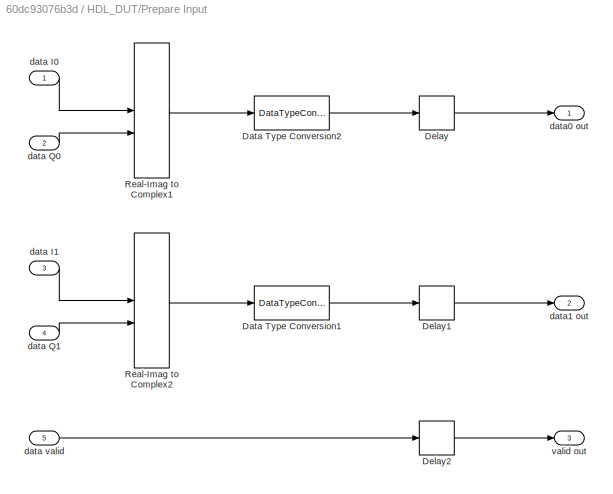
BLOCK [SubSystem] HDL_DUT/Prepare Input
BLOCK [DataTypeConversion] HDL_DUT/Prepare Input/Data Type Conversion1
  ConvertRealWorld = Stored Integer (SI)
  OutDataTypeStr = fixdt(1,16,15)
  RndMeth = Floor
  SaturateOnIntegerOverflow = off
BLOCK [DataTypeConversion] HDL_DUT/Prepare Input/Data Type Conversion2
  ConvertRealWorld = Stored Integer (SI)
  OutDataTypeStr = fixdt(1,16,15)
  RndMeth = Floor
  SaturateOnIntegerOverflow = off
BLOCK [Delay] HDL_DUT/Prepare Input/Delay
  DelayLength = 1
  InputPortMap = u0
BLOCK [Delay] HDL_DUT/Prepare Input/Delay1
  DelayLength = 1
  InputPortMap = u0
BLOCK [Delay] HDL_DUT/Prepare Input/Delay2
  DelayLength = 1
  InitialCondition = false
  InputPortMap = u0
BLOCK [RealImagToComplex] HDL_DUT/Prepare Input/Real-Imag to Complex1
BLOCK [RealImagToComplex] HDL_DUT/Prepare Input/Real-Imag to Complex2
BLOCK [Inport] HDL_DUT/Prepare Input/data I0
BLOCK [Inport] HDL_DUT/Prepare Input/data I1
  Port = 3
BLOCK [Inport] HDL_DUT/Prepare Input/data Q0
  Port = 2
BLOCK [Inport] HDL_DUT/Prepare Input/data Q1
  Port = 4
BLOCK [Inport] HDL_DUT/Prepare Input/data valid
  Port = 5
BLOCK [Outport] HDL_DUT/Prepare Input/data0 out
BLOCK [Outport] HDL_DUT/Prepare Input/data1 out
  Port = 2
BLOCK [Outport] HDL_DUT/Prepare Input/valid out
  Port = 3
BLOCK [Product] HDL_DUT/Product
  OutDataTypeStr = Inherit: Same as first input
  RndMeth = Round
BLOCK [Product] HDL_DUT/Product1
  OutDataTypeStr = Inherit: Same as first input
  RndMeth = Round
BLOCK [Product] HDL_DUT/Product2
  OutDataTypeStr = Inherit: Same as first input
  RndMeth = Round
BLOCK [Product] HDL_DUT/Product3
  OutDataTypeStr = fixdt(1,16,15)
  RndMeth = Round
BLOCK [Product] HDL_DUT/Product4
  OutDataTypeStr = Inherit: Same as first input
  RndMeth = Round
BLOCK [Product] HDL_DUT/Product5
  OutDataTypeStr = Inherit: Same as first input
  RndMeth = Round
BLOCK [Inport] HDL_DUT/Q1
  Port = 21
BLOCK [Inport] HDL_DUT/Q2
  Port = 22
BLOCK [Inport] HDL_DUT/Q3
  Port = 23
BLOCK [Inport] HDL_DUT/Q4
  Port = 24
BLOCK [Inport] HDL_DUT/Q5
  Port = 25
BLOCK [SubSystem] HDL_DUT/RFID System F1
  ReferencedSubsystem = Lib_RFIDSystem
BLOCK [SubSystem] HDL_DUT/RFID System F2
  ReferencedSubsystem = Lib_RFIDSystem
BLOCK [SubSystem] HDL_DUT/RFID System F3
  ReferencedSubsystem = Lib_RFIDSystem
BLOCK [SubSystem] HDL_DUT/RFID System F4
  ReferencedSubsystem = Lib_RFIDSystem
BLOCK [SubSystem] HDL_DUT/RFID System F5
  ReferencedSubsystem = Lib_RFIDSystem
BLOCK [Inport] HDL_DUT/RX0 DMA Sel
  Port = 32
BLOCK [Inport] HDL_DUT/RX0_I_IN
  Port = 6
BLOCK [Inport] HDL_DUT/RX0_Q_IN
  Port = 7
BLOCK [Inport] HDL_DUT/RX1 DMA Sel
  Port = 33
BLOCK [Inport] HDL_DUT/RX1_I_IN
  Port = 8
BLOCK [Inport] HDL_DUT/RX1_Q_IN
  Port = 9
BLOCK [Inport] HDL_DUT/RX_BB_Valid
  Port = 10
BLOCK [Outport] HDL_DUT/RX_DMA0_I
  Port = 6
BLOCK [Outport] HDL_DUT/RX_DMA0_Q
  Port = 7
BLOCK [Outport] HDL_DUT/RX_DMA1_I
  Port = 8
BLOCK [Outport] HDL_DUT/RX_DMA1_Q
  Port = 9
BLOCK [Outport] HDL_DUT/RX_DMA_Valid
  Port = 10
BLOCK [RealImagToComplex] HDL_DUT/Real-Imag to Complex2
BLOCK [RealImagToComplex] HDL_DUT/Real-Imag to Complex6
  NameLocation = top
BLOCK [Inport] HDL_DUT/Rx Sel
  Port = 31
BLOCK [Inport] HDL_DUT/SSK1
  Port = 28
BLOCK [Inport] HDL_DUT/SSK2
  Port = 29
BLOCK [Scope] HDL_DUT/Scope4
  Commented = on
  Floating = off
  NumInputPorts = 1
  ScopeSpecificationString = Simulink.scopes.TimeScopeBlockCfg('CurrentConfiguration', extmgr.ConfigurationSet(extmgr.Configuration('Core','General UI',true),extmgr.Configuration('Core','Source UI',true),extmgr.Configuration('Sources','WiredSimulink',true,'DataLoggingVariableName','ScopeData1'),extmgr.Configuration('Visuals','Time Domain',true,'SerializedDisplays',{struct('MinYLimReal','-0.31814','MaxYLimReal','0.3875','YLabe...<+1432ch>
BLOCK [Scope] HDL_DUT/Scope5
  Commented = on
  Floating = off
  NumInputPorts = 1
  ScopeSpecificationString = Simulink.scopes.TimeScopeBlockCfg('CurrentConfiguration', extmgr.ConfigurationSet(extmgr.Configuration('Core','General UI',true),extmgr.Configuration('Core','Source UI',true),extmgr.Configuration('Sources','WiredSimulink',true,'DataLoggingVariableName','ScopeData1'),extmgr.Configuration('Visuals','Time Domain',true,'SerializedDisplays',{struct('MinYLimReal','-0.03875','MaxYLimReal','0.34875','YLab...<+1435ch>
BLOCK [Selector] HDL_DUT/Selector1
  IndexOptions = Index vector (dialog)
  Indices = [1]
  InputPortWidth = 4
  OutputSizes = 1
BLOCK [Selector] HDL_DUT/Selector2
  IndexOptions = Index vector (dialog)
  Indices = [1]
  InputPortWidth = 4
  OutputSizes = 1
BLOCK [Selector] HDL_DUT/Selector3
  IndexOptions = Index vector (dialog)
  Indices = [1]
  InputPortWidth = 4
  OutputSizes = 1
BLOCK [Selector] HDL_DUT/Selector4
  IndexOptions = Index vector (dialog)
  Indices = [1]
  InputPortWidth = 4
  OutputSizes = 1
BLOCK [Selector] HDL_DUT/Selector5
  IndexOptions = Index vector (dialog)
  Indices = [1]
  InputPortWidth = 4
  OutputSizes = 1
BLOCK [Switch] HDL_DUT/Switch5
  Criteria = u2 > Threshold
  InputSameDT = off
  SaturateOnIntegerOverflow = off
BLOCK [Switch] HDL_DUT/Switch6
  Criteria = u2 > Threshold
  InputSameDT = off
  SaturateOnIntegerOverflow = off
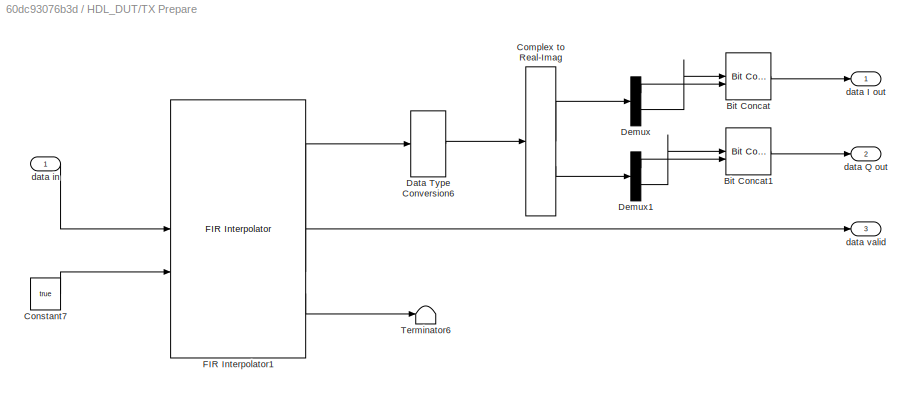
BLOCK [SubSystem] HDL_DUT/TX Prepare
BLOCK [Reference] HDL_DUT/TX Prepare/Bit Concat  REF=hdlsllib/Logic and Bit
Operations/Bit Concat
  SourceBlock = hdlsllib/Logic and Bit\nOperations/Bit Concat
  SourceType = Bit Concat
BLOCK [Reference] HDL_DUT/TX Prepare/Bit Concat1  REF=hdlsllib/Logic and Bit
Operations/Bit Concat
  SourceBlock = hdlsllib/Logic and Bit\nOperations/Bit Concat
  SourceType = Bit Concat
BLOCK [ComplexToRealImag] HDL_DUT/TX Prepare/Complex to Real-Imag
BLOCK [Constant] HDL_DUT/TX Prepare/Constant7
  OutDataTypeStr = boolean
  SampleTime = SAMPLE_TIME
  Value = true
BLOCK [DataTypeConversion] HDL_DUT/TX Prepare/Data Type Conversion6
  ConvertRealWorld = Stored Integer (SI)
  OutDataTypeStr = int16
  RndMeth = Floor
  SaturateOnIntegerOverflow = off
BLOCK [Demux] HDL_DUT/TX Prepare/Demux
  Outputs = 2
BLOCK [Demux] HDL_DUT/TX Prepare/Demux1
  Outputs = 2
BLOCK [Reference] HDL_DUT/TX Prepare/FIR Interpolator1  REF=dsphdlfiltering2/FIR Interpolator
  SourceBlock = dsphdlfiltering2/FIR Interpolator
  SourceType = FIR Interpolator
BLOCK [Terminator] HDL_DUT/TX Prepare/Terminator6
BLOCK [Outport] HDL_DUT/TX Prepare/data I out
BLOCK [Outport] HDL_DUT/TX Prepare/data Q out
  Port = 2
BLOCK [Inport] HDL_DUT/TX Prepare/data in
BLOCK [Outport] HDL_DUT/TX Prepare/data valid
  Port = 3
BLOCK [Inport] HDL_DUT/TX0_DMA_IN
BLOCK [Outport] HDL_DUT/TX0_I_out
BLOCK [Outport] HDL_DUT/TX0_Q_out
  Port = 2
BLOCK [Inport] HDL_DUT/TX1_DMA_IN
  Port = 2
BLOCK [Outport] HDL_DUT/TX1_I_out
  Port = 3
BLOCK [Outport] HDL_DUT/TX1_Q_out
  Port = 4
BLOCK [Inport] HDL_DUT/TX2_DMA_IN
  Port = 3
BLOCK [Inport] HDL_DUT/TX3_DMA_IN
  Port = 4
BLOCK [Inport] HDL_DUT/TX_DMA_Valid
  Port = 5
BLOCK [Outport] HDL_DUT/TX_Valid_out
  Port = 5
BLOCK [Terminator] HDL_DUT/Terminator
BLOCK [Terminator] HDL_DUT/Terminator1
BLOCK [Terminator] HDL_DUT/Terminator10
BLOCK [Terminator] HDL_DUT/Terminator11
BLOCK [Terminator] HDL_DUT/Terminator12
BLOCK [Terminator] HDL_DUT/Terminator13
BLOCK [Terminator] HDL_DUT/Terminator14
BLOCK [Terminator] HDL_DUT/Terminator15
BLOCK [Terminator] HDL_DUT/Terminator16
BLOCK [Terminator] HDL_DUT/Terminator17
BLOCK [Terminator] HDL_DUT/Terminator18
BLOCK [Terminator] HDL_DUT/Terminator19
BLOCK [Terminator] HDL_DUT/Terminator2
BLOCK [Terminator] HDL_DUT/Terminator20
BLOCK [Terminator] HDL_DUT/Terminator21
BLOCK [Terminator] HDL_DUT/Terminator22
BLOCK [Terminator] HDL_DUT/Terminator3
BLOCK [Terminator] HDL_DUT/Terminator4
BLOCK [Terminator] HDL_DUT/Terminator5
BLOCK [Terminator] HDL_DUT/Terminator6
BLOCK [Terminator] HDL_DUT/Terminator7
BLOCK [Terminator] HDL_DUT/Terminator8
BLOCK [Terminator] HDL_DUT/Terminator9
BLOCK [SubSystem] HDL_DUT/Tx Filter F1
  ReferencedSubsystem = Lib_QuinIDTxFilter
BLOCK [SubSystem] HDL_DUT/Tx Filter F2
  ReferencedSubsystem = Lib_QuinIDTxFilter
BLOCK [SubSystem] HDL_DUT/Tx Filter F3
  ReferencedSubsystem = Lib_QuinIDTxFilter
BLOCK [SubSystem] HDL_DUT/Tx Filter F4
  ReferencedSubsystem = Lib_QuinIDTxFilter
BLOCK [SubSystem] HDL_DUT/Tx Filter F5
  ReferencedSubsystem = Lib_QuinIDTxFilter
BLOCK [Inport] HDL_DUT/Tx Mag1
  Port = 11
BLOCK [Inport] HDL_DUT/Tx Mag2
  Port = 12
BLOCK [Inport] HDL_DUT/Tx Mag3
  Port = 13
BLOCK [Inport] HDL_DUT/Tx Mag4
  Port = 14
BLOCK [Inport] HDL_DUT/Tx Mag5
  Port = 15
BLOCK [Inport] HDL_DUT/Tx Sel
  Port = 30
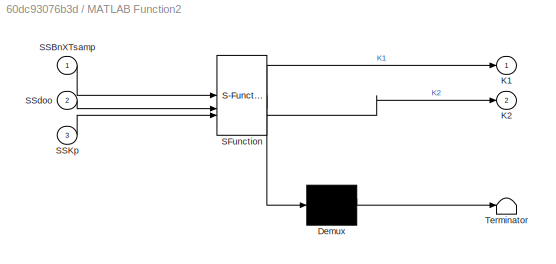
BLOCK [SubSystem] MATLAB Function2
  ErrorFcn = Stateflow.Translate.translate
  PermitHierarchicalResolution = ExplicitOnly
  SFBlockType = MATLAB Function
  TreatAsAtomicUnit = on
BLOCK [Demux] MATLAB Function2/ Demux 
  Outputs = 1
BLOCK [S-Function] MATLAB Function2/ SFunction 
  EnableBusSupport = on
  FunctionName = sf_sfun
  PortCounts = [3 3]
  SFcnIsStateOwnerBlock = off
  SFunctionDeploymentMode = off
  Tag = Stateflow S-Function 14
BLOCK [Terminator] MATLAB Function2/ Terminator 
BLOCK [Outport] MATLAB Function2/K1
BLOCK [Outport] MATLAB Function2/K2
  Port = 2
BLOCK [Inport] MATLAB Function2/SSBnXTsamp
BLOCK [Inport] MATLAB Function2/SSKp
  Port = 3
BLOCK [Inport] MATLAB Function2/SSdoo
  Port = 2
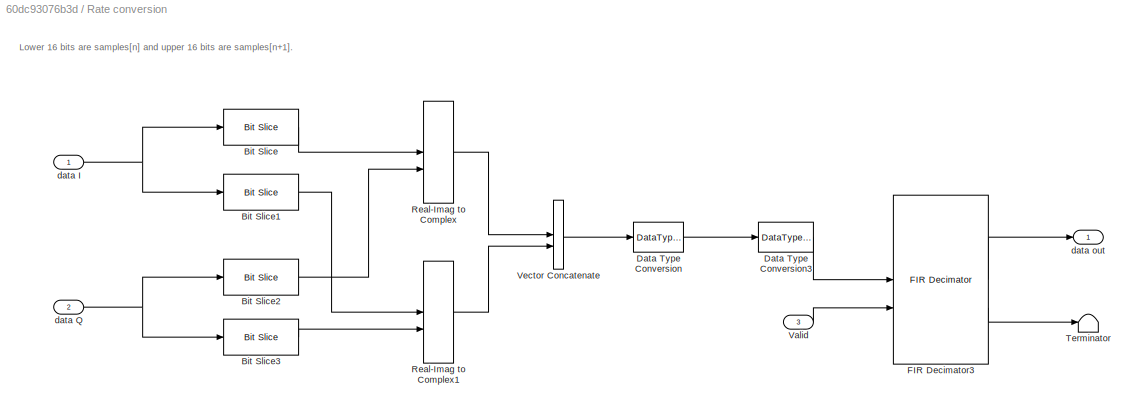
BLOCK [SubSystem] Rate conversion
BLOCK [Reference] Rate conversion/Bit Slice  REF=hdlsllib/Logic and Bit
Operations/Bit Slice
  SourceBlock = hdlsllib/Logic and Bit\nOperations/Bit Slice
  SourceType = Bit Slice
BLOCK [Reference] Rate conversion/Bit Slice1  REF=hdlsllib/Logic and Bit
Operations/Bit Slice
  SourceBlock = hdlsllib/Logic and Bit\nOperations/Bit Slice
  SourceType = Bit Slice
BLOCK [Reference] Rate conversion/Bit Slice2  REF=hdlsllib/Logic and Bit
Operations/Bit Slice
  SourceBlock = hdlsllib/Logic and Bit\nOperations/Bit Slice
  SourceType = Bit Slice
BLOCK [Reference] Rate conversion/Bit Slice3  REF=hdlsllib/Logic and Bit
Operations/Bit Slice
  SourceBlock = hdlsllib/Logic and Bit\nOperations/Bit Slice
  SourceType = Bit Slice
BLOCK [DataTypeConversion] Rate conversion/Data Type Conversion
  ConvertRealWorld = Stored Integer (SI)
  OutDataTypeStr = int16
  RndMeth = Floor
  SaturateOnIntegerOverflow = off
BLOCK [DataTypeConversion] Rate conversion/Data Type Conversion3
  ConvertRealWorld = Stored Integer (SI)
  OutDataTypeStr = fixdt(1,16,15)
  RndMeth = Floor
  SaturateOnIntegerOverflow = off
BLOCK [Reference] Rate conversion/FIR Decimator3  REF=dsphdlfiltering2/FIR Decimator
  SourceBlock = dsphdlfiltering2/FIR Decimator
  SourceType = FIR Decimator
BLOCK [RealImagToComplex] Rate conversion/Real-Imag to Complex
BLOCK [RealImagToComplex] Rate conversion/Real-Imag to Complex1
BLOCK [Terminator] Rate conversion/Terminator
BLOCK [Inport] Rate conversion/Valid
  Port = 3
BLOCK [Concatenate] Rate conversion/Vector Concatenate
BLOCK [Inport] Rate conversion/data I
BLOCK [Inport] Rate conversion/data Q
  Port = 2
BLOCK [Outport] Rate conversion/data out
BLOCK [RealImagToComplex] Real-Imag to Complex3
BLOCK [RealImagToComplex] Real-Imag to Complex4
BLOCK [Scope] Scope
  Floating = off
  NumInputPorts = 2
  ScopeSpecificationString = Simulink.scopes.TimeScopeBlockCfg('CurrentConfiguration', extmgr.ConfigurationSet(extmgr.Configuration('Core','General UI',true),extmgr.Configuration('Core','Source UI',true),extmgr.Configuration('Sources','WiredSimulink',true,'DataLoggingVariableName','ScopeData2'),extmgr.Configuration('Visuals','Time Domain',true,'SerializedDisplays',{struct('MinYLimReal','-0.6943','MaxYLimReal','0.69601','YLabe...<+2418ch>
BLOCK [Scope] Scope7
  Floating = off
  NumInputPorts = 3
  ScopeSpecificationString = Simulink.scopes.TimeScopeBlockCfg('CurrentConfiguration', extmgr.ConfigurationSet(extmgr.Configuration('Core','General UI',true),extmgr.Configuration('Core','Source UI',true),extmgr.Configuration('Sources','WiredSimulink',true,'DataLoggingVariableName','ScopeData3'),extmgr.Configuration('Visuals','Time Domain',true,'SerializedDisplays',{struct('MinYLimReal','-800.5','MaxYLimReal','3741.33552','YLa...<+3266ch>
BLOCK [SpectrumAnalyzer] Spectrum Analyzer
  GraphicalSettings = {"GraphicalSettings":{"Style":{"BackgroundColor":[0.12941176470588237,0.12941176470588237,0.12941176470588237],"AxesColor":[0.07058823529411765,0.07058823529411765,0.07058823529411765],"LabelsColor":[0.8509803921568627,0.8509803921568627,0.8509803921568627],"PreserveColors":false,"Visible":[true],"LineStyle":["-"],"LineColor":[[1,1,0.06666666666666667]],"LineWidth":[1.5],"Marker":["none"],"FontSiz...<+929ch>
  OpenAtSimulationStart = off
  ScopeFrameLocation = window
  Span = 122880000
  StartFrequency = -61440000
  StopFrequency = 61440000
  WasSavedAsWebScope = on
  WindowPosition = [605.000000,336.000000,800.000000,500.000000,]
  YLimits = [-115.87985262,25.05534256]
BLOCK [Terminator] Terminator
BLOCK [Terminator] Terminator1
ANNOTATION (root): 1 for Capture High rate 2 for Receive RFID System signal
ANNOTATION (root): 1 for PIE Align Signal 2 for NCO Tone Signal 3 for RFID Tx Signal
ANNOTATION (root): This is intended to be used for AD9375
ANNOTATION (root): Add your design targeted for ASIC/FPGA inside HDL_DUT and then run the following command: makehdl('HDL_DUT')
ANNOTATION (root): Note: This model is configured with ' hdlsetup '
ANNOTATION (root): Loopback
ANNOTATION (root): Rx Sel == 1 1 for Tx Signal 2 for Rx channel 0 3 for Rx channel 1 Rx Sel == 2 1 for RxBB To RFID sys F1 2 for RxBB To RFID sys F2 3 for RxBB To RFID sys F3 4 for RxBB To RFID sys F4 5 for RxBB To RFID sys F5 6 for RxOn input to RFID sys F1 7 for Rx symbol sync output at sys F1 8 for Rx Decode Result
ANNOTATION HDL_DUT: Independent Signal Generation
ANNOTATION HDL_DUT: Main Signal Tx/Rx Section
ANNOTATION HDL_DUT: Output Area
ANNOTATION HDL_DUT: Input Ports Area
ANNOTATION HDL_DUT: All RxBBValidFx should actually be perfectly aligned.
ANNOTATION HDL_DUT: Compensate for the loopback delay, including all the way from sending from our IP core to received by our IP core. In other words, the delay includes tx digital sdr part, tx analog part, rf part, rx analog part, rx digital sdr part. Maximum 250 currently, if higher is required, multistage of this must be considered, to maintain the slack time of generated HDL.
ANNOTATION HDL_DUT: DMA Output
ANNOTATION HDL_DUT: Decode result align and merge
ANNOTATION HDL_DUT: Digital down conversion
ANNOTATION HDL_DUT: Digital up conversion and Tx interpolation
ANNOTATION HDL_DUT: IF Carrier
ANNOTATION HDL_DUT: Input Parameters via AXI Lite
ANNOTATION HDL_DUT: LoopBack Delay
ANNOTATION HDL_DUT: Loopback Delay PIE Signal
ANNOTATION HDL_DUT: RFID system and Tx RC filter
ANNOTATION HDL_DUT: Reader Align Monitor
ANNOTATION HDL_DUT: Referenced subsystem RFIDSystem and RFIDRx are exactly the same as in RFID reader. They are actually their copy in QuinReader folder.
ANNOTATION HDL_DUT: Rx ports and signal prepare
ANNOTATION HDL_DUT: Tone Signal Gen
ANNOTATION HDL_DUT: Transmit Signal
ANNOTATION HDL_DUT: Tx Sig Selection
ANNOTATION HDL_DUT: Unused Tx ports
ANNOTATION Rate conversion: Lower 16 bits are samples[n] and upper 16 bits are samples[n+1].
LINE Bus Creator1:1 -> Goto1:1
LINE Bus Selector:1 -> HDL_DUT:6
LINE Bus Selector:2 -> HDL_DUT:7
LINE Complex to Real-Imag1:1 -> Bus Creator1:1
LINE Complex to Real-Imag1:2 -> Bus Creator1:2
LINE Constant10:1 -> HDL_DUT:22
LINE Constant11:1 -> HDL_DUT:23
LINE Constant12:1 -> HDL_DUT:24
LINE Constant13:1 -> HDL_DUT:25
LINE Constant14:1 -> HDL_DUT:16
LINE Constant15:1 -> HDL_DUT:17
LINE Constant16:1 -> HDL_DUT:18
LINE Constant17:1 -> HDL_DUT:19
LINE Constant18:1 -> HDL_DUT:20
LINE Constant19:1 -> HDL_DUT:14
NET Constant1:1 -> HDL_DUT:1, HDL_DUT:2, HDL_DUT:3, HDL_DUT:4
LINE Constant20:1 -> HDL_DUT:33
LINE Constant21:1 -> HDL_DUT:30
LINE Constant22:1 -> HDL_DUT:27
LINE Constant23:1 -> HDL_DUT:32
LINE Constant24:1 -> HDL_DUT:13
LINE Constant25:1 -> HDL_DUT:12
LINE Constant26:1 -> HDL_DUT:11
LINE Constant2:1 -> HDL_DUT:5
NET Constant3:1 -> HDL_DUT:8, HDL_DUT:9
LINE Constant4:1 -> HDL_DUT:31
LINE Constant5:1 -> MATLAB Function2:1
LINE Constant6:1 -> HDL_DUT:26
LINE Constant7:1 -> HDL_DUT:15
LINE Constant8:1 -> MATLAB Function2:2
LINE Constant9:1 -> MATLAB Function2:3
LINE Constant:1 -> HDL_DUT:21
NET Data Type Conversion1:1 -> Display3:1, Goto3:1
NET Data Type Conversion4:1 -> Display2:1, Goto:1
LINE Data Type Conversion6:1 -> Complex to Real-Imag1:1
NET Delay:1 -> Data Type Conversion6:1, Scope:1, Spectrum Analyzer:1
LINE From1:1 -> HDL_DUT:10
LINE From2:1 -> HDL_DUT:29
LINE From3:1 -> HDL_DUT:28
LINE From4:1 -> Rate conversion:3
LINE From5:1 -> Scope:2
LINE From:1 -> Bus Selector:1
LINE HDL_DUT/Add:1 -> HDL_DUT/Delay63:1
LINE HDL_DUT/Align Decoded Results F1:1 -> HDL_DUT/Goto64:1
LINE HDL_DUT/Align Decoded Results F1:2 -> HDL_DUT/Goto62:1
LINE HDL_DUT/Align Decoded Results F2:1 -> HDL_DUT/Goto76:1
LINE HDL_DUT/Align Decoded Results F2:2 -> HDL_DUT/Terminator5:1
LINE HDL_DUT/Align Decoded Results F3:1 -> HDL_DUT/Goto77:1
LINE HDL_DUT/Align Decoded Results F3:2 -> HDL_DUT/Terminator6:1
LINE HDL_DUT/Align Decoded Results F4:1 -> HDL_DUT/Goto83:1
LINE HDL_DUT/Align Decoded Results F4:2 -> HDL_DUT/Terminator20:1
LINE HDL_DUT/Align Decoded Results F5:1 -> HDL_DUT/Goto84:1
LINE HDL_DUT/Align Decoded Results F5:2 -> HDL_DUT/Terminator21:1
LINE HDL_DUT/Align SS Out F1:1 -> HDL_DUT/Data Type Conversion1:1
LINE HDL_DUT/Align SS Out F1:2 -> HDL_DUT/Terminator22:1
LINE HDL_DUT/Bit Concat1:1 -> HDL_DUT/Align Decoded Results F1:1
LINE HDL_DUT/Bit Concat2:1 -> HDL_DUT/Align Decoded Results F2:1
LINE HDL_DUT/Bit Concat3:1 -> HDL_DUT/Align Decoded Results F3:1
LINE HDL_DUT/Bit Concat4:1 -> HDL_DUT/Align Decoded Results F4:1
LINE HDL_DUT/Bit Concat5:1 -> HDL_DUT/Align Decoded Results F5:1
LINE HDL_DUT/Bit Concat6:1 -> HDL_DUT/Data Type Conversion:1
LINE HDL_DUT/Bit Slice1:1 -> HDL_DUT/Real-Imag to Complex6:1
LINE HDL_DUT/Bit Slice:1 -> HDL_DUT/Real-Imag to Complex6:2
LINE HDL_DUT/Compare To Constant1:1 -> HDL_DUT/Multiport Switch8:2
LINE HDL_DUT/Compare To Constant2:1 -> HDL_DUT/Logical Operator10:1
LINE HDL_DUT/Compare To Constant3:1 -> HDL_DUT/Logical Operator10:2
LINE HDL_DUT/Compare To Constant4:1 -> HDL_DUT/Logical Operator11:1
LINE HDL_DUT/Compare To Constant5:1 -> HDL_DUT/Logical Operator11:2
LINE HDL_DUT/Complex to Real-Imag3:1 -> HDL_DUT/RX_DMA0_I:1
LINE HDL_DUT/Complex to Real-Imag3:2 -> HDL_DUT/RX_DMA0_Q:1
LINE HDL_DUT/Complex to Real-Imag4:1 -> HDL_DUT/RX_DMA1_I:1
LINE HDL_DUT/Complex to Real-Imag4:2 -> HDL_DUT/RX_DMA1_Q:1
LINE HDL_DUT/Constant13:1 -> HDL_DUT/Switch6:3
LINE HDL_DUT/Constant14:1 -> HDL_DUT/Switch6:1
LINE HDL_DUT/Constant1:1 -> HDL_DUT/NCO F2:2
LINE HDL_DUT/Constant2:1 -> HDL_DUT/TX1_I_out:1
LINE HDL_DUT/Constant3:1 -> HDL_DUT/NCO F3:2
LINE HDL_DUT/Constant40:1 -> HDL_DUT/Switch5:1
LINE HDL_DUT/Constant41:1 -> HDL_DUT/Real-Imag to Complex2:2
LINE HDL_DUT/Constant4:1 -> HDL_DUT/TX1_Q_out:1
LINE HDL_DUT/Constant5:1 -> HDL_DUT/NCO F4:2
LINE HDL_DUT/Constant6:1 -> HDL_DUT/NCO F5:2
LINE HDL_DUT/Constant:1 -> HDL_DUT/NCO F1:2
LINE HDL_DUT/DDC F1:1 -> HDL_DUT/Goto2:1
LINE HDL_DUT/DDC F1:2 -> HDL_DUT/Goto4:1
LINE HDL_DUT/DDC F1:3 -> HDL_DUT/Goto105:1
LINE HDL_DUT/DDC F1:4 -> HDL_DUT/Goto106:1
LINE HDL_DUT/DDC F2:1 -> HDL_DUT/Goto40:1
LINE HDL_DUT/DDC F2:2 -> HDL_DUT/Goto41:1
LINE HDL_DUT/DDC F2:3 -> HDL_DUT/Goto39:1
LINE HDL_DUT/DDC F2:4 -> HDL_DUT/Goto107:1
LINE HDL_DUT/DDC F3:1 -> HDL_DUT/Goto44:1
LINE HDL_DUT/DDC F3:2 -> HDL_DUT/Goto45:1
LINE HDL_DUT/DDC F3:3 -> HDL_DUT/Goto108:1
LINE HDL_DUT/DDC F3:4 -> HDL_DUT/Goto109:1
LINE HDL_DUT/DDC F4:1 -> HDL_DUT/Goto50:1
LINE HDL_DUT/DDC F4:2 -> HDL_DUT/Goto51:1
LINE HDL_DUT/DDC F4:3 -> HDL_DUT/Goto110:1
LINE HDL_DUT/DDC F4:4 -> HDL_DUT/Goto111:1
LINE HDL_DUT/DDC F5:1 -> HDL_DUT/Goto55:1
LINE HDL_DUT/DDC F5:2 -> HDL_DUT/Goto57:1
LINE HDL_DUT/DDC F5:3 -> HDL_DUT/Goto112:1
LINE HDL_DUT/DDC F5:4 -> HDL_DUT/Goto113:1
LINE HDL_DUT/Data Type Conversion1:1 -> HDL_DUT/Goto15:1
LINE HDL_DUT/Data Type Conversion2:1 -> HDL_DUT/Goto86:1
LINE HDL_DUT/Data Type Conversion4:1 -> HDL_DUT/Complex to Real-Imag3:1
LINE HDL_DUT/Data Type Conversion5:1 -> HDL_DUT/Complex to Real-Imag4:1
NET HDL_DUT/Data Type Conversion:1 -> HDL_DUT/Bit Slice1:1, HDL_DUT/Bit Slice:1
LINE HDL_DUT/Delay10:1 -> HDL_DUT/Goto9:1
LINE HDL_DUT/Delay11:1 -> HDL_DUT/Goto10:1
LINE HDL_DUT/Delay12:1 -> HDL_DUT/Goto11:1
LINE HDL_DUT/Delay13:1 -> HDL_DUT/Data Type Conversion4:1
LINE HDL_DUT/Delay14:1 -> HDL_DUT/Data Type Conversion5:1
LINE HDL_DUT/Delay15:1 -> HDL_DUT/RX_DMA_Valid:1
LINE HDL_DUT/Delay16:1 -> HDL_DUT/Goto5:1
LINE HDL_DUT/Delay17:1 -> HDL_DUT/Goto6:1
LINE HDL_DUT/Delay18:1 -> HDL_DUT/Goto16:1
NET HDL_DUT/Delay19:1 -> HDL_DUT/Goto56:1, HDL_DUT/Scope5:1
LINE HDL_DUT/Delay1:1 -> HDL_DUT/Delay17:1
LINE HDL_DUT/Delay20:1 -> HDL_DUT/Goto17:1
LINE HDL_DUT/Delay21:1 -> HDL_DUT/Goto18:1
LINE HDL_DUT/Delay22:1 -> HDL_DUT/Goto23:1
LINE HDL_DUT/Delay23:1 -> HDL_DUT/Goto19:1
LINE HDL_DUT/Delay24:1 -> HDL_DUT/Goto20:1
LINE HDL_DUT/Delay25:1 -> HDL_DUT/Goto21:1
LINE HDL_DUT/Delay26:1 -> HDL_DUT/Goto22:1
LINE HDL_DUT/Delay27:1 -> HDL_DUT/Goto24:1
LINE HDL_DUT/Delay28:1 -> HDL_DUT/Goto25:1
LINE HDL_DUT/Delay29:1 -> HDL_DUT/Goto26:1
LINE HDL_DUT/Delay2:1 -> HDL_DUT/Delay16:1
LINE HDL_DUT/Delay30:1 -> HDL_DUT/Goto27:1
LINE HDL_DUT/Delay31:1 -> HDL_DUT/Goto34:1
LINE HDL_DUT/Delay32:1 -> HDL_DUT/Goto42:1
LINE HDL_DUT/Delay33:1 -> HDL_DUT/Delay32:1
LINE HDL_DUT/Delay34:1 -> HDL_DUT/Goto46:1
LINE HDL_DUT/Delay35:1 -> HDL_DUT/Delay34:1
LINE HDL_DUT/Delay36:1 -> HDL_DUT/Goto52:1
LINE HDL_DUT/Delay37:1 -> HDL_DUT/Delay36:1
LINE HDL_DUT/Delay38:1 -> HDL_DUT/Goto58:1
LINE HDL_DUT/Delay39:1 -> HDL_DUT/Delay38:1
LINE HDL_DUT/Delay3:1 -> HDL_DUT/Goto:1
LINE HDL_DUT/Delay40:1 -> HDL_DUT/Delay41:1
LINE HDL_DUT/Delay41:1 -> HDL_DUT/Goto43:1
LINE HDL_DUT/Delay42:1 -> HDL_DUT/Delay43:1
LINE HDL_DUT/Delay43:1 -> HDL_DUT/Goto47:1
LINE HDL_DUT/Delay44:1 -> HDL_DUT/Delay45:1
LINE HDL_DUT/Delay45:1 -> HDL_DUT/Goto53:1
LINE HDL_DUT/Delay46:1 -> HDL_DUT/Delay47:1
LINE HDL_DUT/Delay47:1 -> HDL_DUT/Goto60:1
LINE HDL_DUT/Delay48:1 -> HDL_DUT/Product:1
LINE HDL_DUT/Delay49:1 -> HDL_DUT/Product:2
LINE HDL_DUT/Delay4:1 -> HDL_DUT/Goto1:1
LINE HDL_DUT/Delay50:1 -> HDL_DUT/Product1:1
LINE HDL_DUT/Delay51:1 -> HDL_DUT/Product1:2
LINE HDL_DUT/Delay52:1 -> HDL_DUT/Product2:1
LINE HDL_DUT/Delay53:1 -> HDL_DUT/Product2:2
LINE HDL_DUT/Delay54:1 -> HDL_DUT/Product4:1
LINE HDL_DUT/Delay55:1 -> HDL_DUT/Product4:2
LINE HDL_DUT/Delay56:1 -> HDL_DUT/Product5:1
LINE HDL_DUT/Delay57:1 -> HDL_DUT/Product5:2
LINE HDL_DUT/Delay58:1 -> HDL_DUT/Add:1
LINE HDL_DUT/Delay59:1 -> HDL_DUT/Add:2
LINE HDL_DUT/Delay5:1 -> HDL_DUT/Goto75:1
LINE HDL_DUT/Delay60:1 -> HDL_DUT/Add:3
LINE HDL_DUT/Delay61:1 -> HDL_DUT/Add:4
LINE HDL_DUT/Delay62:1 -> HDL_DUT/Add:5
LINE HDL_DUT/Delay63:1 -> HDL_DUT/Goto104:1
LINE HDL_DUT/Delay64:1 -> HDL_DUT/Goto96:1
LINE HDL_DUT/Delay65:1 -> HDL_DUT/Goto97:1
LINE HDL_DUT/Delay66:1 -> HDL_DUT/Goto98:1
LINE HDL_DUT/Delay67:1 -> HDL_DUT/Goto99:1
LINE HDL_DUT/Delay68:1 -> HDL_DUT/Goto80:1
LINE HDL_DUT/Delay69:1 -> HDL_DUT/Goto100:1
LINE HDL_DUT/Delay6:1 -> HDL_DUT/Goto73:1
LINE HDL_DUT/Delay70:1 -> HDL_DUT/Goto101:1
LINE HDL_DUT/Delay71:1 -> HDL_DUT/Goto102:1
LINE HDL_DUT/Delay72:1 -> HDL_DUT/Goto103:1
LINE HDL_DUT/Delay73:1 -> HDL_DUT/Multiport Switch3:2
LINE HDL_DUT/Delay74:1 -> HDL_DUT/Multiport Switch3:3
LINE HDL_DUT/Delay75:1 -> HDL_DUT/Multiport Switch3:4
LINE HDL_DUT/Delay76:1 -> HDL_DUT/Multiport Switch3:5
LINE HDL_DUT/Delay77:1 -> HDL_DUT/Multiport Switch3:6
LINE HDL_DUT/Delay78:1 -> HDL_DUT/Multiport Switch3:7
LINE HDL_DUT/Delay79:1 -> HDL_DUT/Multiport Switch5:2
LINE HDL_DUT/Delay7:1 -> HDL_DUT/Goto7:1
LINE HDL_DUT/Delay80:1 -> HDL_DUT/Multiport Switch5:3
LINE HDL_DUT/Delay81:1 -> HDL_DUT/Multiport Switch5:4
LINE HDL_DUT/Delay82:1 -> HDL_DUT/Multiport Switch5:5
LINE HDL_DUT/Delay83:1 -> HDL_DUT/Multiport Switch5:6
LINE HDL_DUT/Delay84:1 -> HDL_DUT/Multiport Switch5:7
LINE HDL_DUT/Delay8:1 -> HDL_DUT/Goto71:1
LINE HDL_DUT/Delay93:1 -> HDL_DUT/Goto116:1
LINE HDL_DUT/Delay9:1 -> HDL_DUT/Goto72:1
LINE HDL_DUT/Delay:1 -> HDL_DUT/Goto65:1
LINE HDL_DUT/Dual target:1 -> HDL_DUT/Delay4:1
LINE HDL_DUT/From100:1 -> HDL_DUT/RFID System F5:1
LINE HDL_DUT/From101:1 -> HDL_DUT/RFID System F5:2
LINE HDL_DUT/From102:1 -> HDL_DUT/RFID System F5:4
LINE HDL_DUT/From103:1 -> HDL_DUT/Tx Filter F5:1
LINE HDL_DUT/From104:1 -> HDL_DUT/RFID System F5:7
LINE HDL_DUT/From105:1 -> HDL_DUT/RFID System F5:8
LINE HDL_DUT/From106:1 -> HDL_DUT/Switch5:3
LINE HDL_DUT/From107:1 -> HDL_DUT/RFID System F5:3
LINE HDL_DUT/From108:1 -> HDL_DUT/RFID System F5:5
LINE HDL_DUT/From109:1 -> HDL_DUT/RFID System F5:6
LINE HDL_DUT/From10:1 -> HDL_DUT/RFID System F1:4
LINE HDL_DUT/From110:1 -> HDL_DUT/Delay33:1
LINE HDL_DUT/From111:1 -> HDL_DUT/Delay35:1
LINE HDL_DUT/From112:1 -> HDL_DUT/Delay37:1
LINE HDL_DUT/From113:1 -> HDL_DUT/Delay39:1
LINE HDL_DUT/From114:1 -> HDL_DUT/Delay40:1
LINE HDL_DUT/From115:1 -> HDL_DUT/Delay42:1
LINE HDL_DUT/From116:1 -> HDL_DUT/Delay44:1
LINE HDL_DUT/From117:1 -> HDL_DUT/Delay46:1
LINE HDL_DUT/From118:1 -> HDL_DUT/Delay48:1
LINE HDL_DUT/From119:1 -> HDL_DUT/Delay50:1
LINE HDL_DUT/From11:1 -> HDL_DUT/Delay78:1
LINE HDL_DUT/From120:1 -> HDL_DUT/Delay52:1
LINE HDL_DUT/From121:1 -> HDL_DUT/Delay54:1
LINE HDL_DUT/From122:1 -> HDL_DUT/Delay56:1
LINE HDL_DUT/From123:1 -> HDL_DUT/Delay49:1
LINE HDL_DUT/From124:1 -> HDL_DUT/Delay51:1
LINE HDL_DUT/From125:1 -> HDL_DUT/Delay13:1
LINE HDL_DUT/From126:1 -> HDL_DUT/Delay14:1
LINE HDL_DUT/From127:1 -> HDL_DUT/Delay53:1
LINE HDL_DUT/From128:1 -> HDL_DUT/Delay55:1
LINE HDL_DUT/From129:1 -> HDL_DUT/Delay57:1
LINE HDL_DUT/From12:1 -> HDL_DUT/Multiport Switch7:1
LINE HDL_DUT/From130:1 -> HDL_DUT/Delay65:1
LINE HDL_DUT/From131:1 -> HDL_DUT/Delay66:1
LINE HDL_DUT/From132:1 -> HDL_DUT/Delay67:1
LINE HDL_DUT/From133:1 -> HDL_DUT/Delay68:1
LINE HDL_DUT/From134:1 -> HDL_DUT/Delay69:1
LINE HDL_DUT/From135:1 -> HDL_DUT/Delay70:1
LINE HDL_DUT/From136:1 -> HDL_DUT/Delay71:1
LINE HDL_DUT/From137:1 -> HDL_DUT/Delay72:1
NET HDL_DUT/From138:1 -> HDL_DUT/Bit Concat1:1, HDL_DUT/Selector1:1
NET HDL_DUT/From139:1 -> HDL_DUT/Bit Concat2:1, HDL_DUT/Selector2:1
LINE HDL_DUT/From13:1 -> HDL_DUT/Multiport Switch7:2
NET HDL_DUT/From140:1 -> HDL_DUT/Bit Concat3:1, HDL_DUT/Selector3:1
NET HDL_DUT/From141:1 -> HDL_DUT/Bit Concat4:1, HDL_DUT/Selector4:1
NET HDL_DUT/From142:1 -> HDL_DUT/Bit Concat5:1, HDL_DUT/Selector5:1
LINE HDL_DUT/From143:1 -> HDL_DUT/Multiport Switch5:9
LINE HDL_DUT/From144:1 -> HDL_DUT/Delay80:1
LINE HDL_DUT/From145:1 -> HDL_DUT/Switch6:2
LINE HDL_DUT/From146:1 -> HDL_DUT/Delay84:1
LINE HDL_DUT/From147:1 -> HDL_DUT/Delay81:1
LINE HDL_DUT/From148:1 -> HDL_DUT/Delay82:1
LINE HDL_DUT/From149:1 -> HDL_DUT/Delay83:1
LINE HDL_DUT/From14:1 -> HDL_DUT/Multiport Switch7:4
LINE HDL_DUT/From150:1 -> HDL_DUT/Delay74:1
LINE HDL_DUT/From151:1 -> HDL_DUT/Delay75:1
LINE HDL_DUT/From152:1 -> HDL_DUT/Delay76:1
LINE HDL_DUT/From153:1 -> HDL_DUT/Delay77:1
LINE HDL_DUT/From154:1 -> HDL_DUT/TX Prepare:1
LINE HDL_DUT/From155:1 -> HDL_DUT/Align Decoded Results F2:3
LINE HDL_DUT/From156:1 -> HDL_DUT/Product3:2
LINE HDL_DUT/From157:1 -> HDL_DUT/Multiport Switch4:3
LINE HDL_DUT/From158:1 -> HDL_DUT/Align Decoded Results F3:3
LINE HDL_DUT/From159:1 -> HDL_DUT/Align Decoded Results F4:3
LINE HDL_DUT/From160:1 -> HDL_DUT/Align Decoded Results F5:3
LINE HDL_DUT/From161:1 -> HDL_DUT/Bit Concat6:1
LINE HDL_DUT/From162:1 -> HDL_DUT/Bit Concat6:2
LINE HDL_DUT/From163:1 -> HDL_DUT/Bit Concat6:3
LINE HDL_DUT/From164:1 -> HDL_DUT/Bit Concat6:4
LINE HDL_DUT/From165:1 -> HDL_DUT/Bit Concat6:5
LINE HDL_DUT/From16:1 -> HDL_DUT/Multiport Switch8:3
LINE HDL_DUT/From17:1 -> HDL_DUT/DDC F1:1
LINE HDL_DUT/From18:1 -> HDL_DUT/DDC F1:3
LINE HDL_DUT/From19:1 -> HDL_DUT/DDC F2:1
LINE HDL_DUT/From1:1 -> HDL_DUT/RFID System F1:2
LINE HDL_DUT/From20:1 -> HDL_DUT/DDC F2:3
LINE HDL_DUT/From21:1 -> HDL_DUT/Multiport Switch6:1
LINE HDL_DUT/From22:1 -> HDL_DUT/Multiport Switch6:2
LINE HDL_DUT/From23:1 -> HDL_DUT/Multiport Switch7:3
LINE HDL_DUT/From24:1 -> HDL_DUT/Multiport Switch3:1
LINE HDL_DUT/From25:1 -> HDL_DUT/Tx Filter F1:1
LINE HDL_DUT/From26:1 -> HDL_DUT/Multiport Switch6:4
LINE HDL_DUT/From27:1 -> HDL_DUT/Multiport Switch6:3
LINE HDL_DUT/From28:1 -> HDL_DUT/Multiport Switch1:1
LINE HDL_DUT/From29:1 -> HDL_DUT/Delay73:1
LINE HDL_DUT/From2:1 -> HDL_DUT/DDC F1:4
LINE HDL_DUT/From30:1 -> HDL_DUT/Multiport Switch4:4
LINE HDL_DUT/From31:1 -> HDL_DUT/Multiport Switch5:1
LINE HDL_DUT/From32:1 -> HDL_DUT/Multiport Switch8:1
LINE HDL_DUT/From33:1 -> HDL_DUT/Align Decoded Results F1:3
LINE HDL_DUT/From34:1 -> HDL_DUT/NCO F1:1
LINE HDL_DUT/From35:1 -> HDL_DUT/NCO F2:1
LINE HDL_DUT/From36:1 -> HDL_DUT/RFID System F1:7
LINE HDL_DUT/From37:1 -> HDL_DUT/RFID System F1:8
LINE HDL_DUT/From38:1 -> HDL_DUT/Align SS Out F1:1
LINE HDL_DUT/From39:1 -> HDL_DUT/Align SS Out F1:2
LINE HDL_DUT/From3:1 -> HDL_DUT/DDC F1:5
LINE HDL_DUT/From40:1 -> HDL_DUT/Align SS Out F1:3
LINE HDL_DUT/From41:1 -> HDL_DUT/NCO F3:1
LINE HDL_DUT/From42:1 -> HDL_DUT/Multiport Switch5:8
LINE HDL_DUT/From43:1 -> HDL_DUT/Multiport Switch3:8
LINE HDL_DUT/From44:1 -> HDL_DUT/NCO F4:1
LINE HDL_DUT/From45:1 -> HDL_DUT/NCO F5:1
LINE HDL_DUT/From46:1 -> HDL_DUT/Delay31:1
LINE HDL_DUT/From47:1 -> HDL_DUT/Delay64:1
LINE HDL_DUT/From48:1 -> HDL_DUT/DDC F1:2
LINE HDL_DUT/From49:1 -> HDL_DUT/RFID System F1:5
LINE HDL_DUT/From4:1 -> HDL_DUT/RFID System F1:3
LINE HDL_DUT/From50:1 -> HDL_DUT/RFID System F1:6
LINE HDL_DUT/From51:1 -> HDL_DUT/DDC F2:4
LINE HDL_DUT/From52:1 -> HDL_DUT/DDC F2:5
LINE HDL_DUT/From53:1 -> HDL_DUT/DDC F2:2
LINE HDL_DUT/From54:1 -> HDL_DUT/DDC F3:1
LINE HDL_DUT/From55:1 -> HDL_DUT/DDC F3:3
LINE HDL_DUT/From56:1 -> HDL_DUT/DDC F3:4
LINE HDL_DUT/From57:1 -> HDL_DUT/DDC F3:5
LINE HDL_DUT/From58:1 -> HDL_DUT/DDC F3:2
LINE HDL_DUT/From59:1 -> HDL_DUT/DDC F4:1
LINE HDL_DUT/From5:1 -> HDL_DUT/Delay2:1
LINE HDL_DUT/From60:1 -> HDL_DUT/DDC F4:3
LINE HDL_DUT/From61:1 -> HDL_DUT/DDC F4:4
LINE HDL_DUT/From62:1 -> HDL_DUT/DDC F4:5
LINE HDL_DUT/From63:1 -> HDL_DUT/DDC F4:2
LINE HDL_DUT/From64:1 -> HDL_DUT/DDC F5:1
LINE HDL_DUT/From65:1 -> HDL_DUT/DDC F5:3
LINE HDL_DUT/From66:1 -> HDL_DUT/DDC F5:4
LINE HDL_DUT/From67:1 -> HDL_DUT/DDC F5:5
LINE HDL_DUT/From68:1 -> HDL_DUT/DDC F5:2
LINE HDL_DUT/From69:1 -> HDL_DUT/RFID System F2:1
LINE HDL_DUT/From6:1 -> HDL_DUT/Delay1:1
LINE HDL_DUT/From70:1 -> HDL_DUT/RFID System F2:2
LINE HDL_DUT/From71:1 -> HDL_DUT/RFID System F2:4
LINE HDL_DUT/From72:1 -> HDL_DUT/Tx Filter F2:1
LINE HDL_DUT/From73:1 -> HDL_DUT/RFID System F2:7
LINE HDL_DUT/From74:1 -> HDL_DUT/RFID System F2:8
LINE HDL_DUT/From75:1 -> HDL_DUT/RFID System F2:3
LINE HDL_DUT/From76:1 -> HDL_DUT/RFID System F2:5
LINE HDL_DUT/From77:1 -> HDL_DUT/RFID System F2:6
LINE HDL_DUT/From78:1 -> HDL_DUT/Multiport Switch4:1
LINE HDL_DUT/From79:1 -> HDL_DUT/Multiport Switch4:2
NET HDL_DUT/From7:1 -> HDL_DUT/Delay1:2, HDL_DUT/Delay2:2, HDL_DUT/Delay33:2, HDL_DUT/Delay35:2, HDL_DUT/Delay37:2, HDL_DUT/Delay39:2, HDL_DUT/Delay40:2, HDL_DUT/Delay42:2, HDL_DUT/Delay44:2, HDL_DUT/Delay46:2
LINE HDL_DUT/From80:1 -> HDL_DUT/RFID System F3:1
LINE HDL_DUT/From81:1 -> HDL_DUT/RFID System F3:2
LINE HDL_DUT/From82:1 -> HDL_DUT/RFID System F3:4
LINE HDL_DUT/From83:1 -> HDL_DUT/Tx Filter F3:1
LINE HDL_DUT/From84:1 -> HDL_DUT/Product3:1
LINE HDL_DUT/From85:1 -> HDL_DUT/RFID System F3:7
LINE HDL_DUT/From86:1 -> HDL_DUT/RFID System F3:8
LINE HDL_DUT/From87:1 -> HDL_DUT/RFID System F3:3
LINE HDL_DUT/From88:1 -> HDL_DUT/RFID System F3:5
LINE HDL_DUT/From89:1 -> HDL_DUT/RFID System F3:6
LINE HDL_DUT/From8:1 -> HDL_DUT/Multiport Switch2:1
LINE HDL_DUT/From90:1 -> HDL_DUT/RFID System F4:1
LINE HDL_DUT/From91:1 -> HDL_DUT/RFID System F4:2
LINE HDL_DUT/From92:1 -> HDL_DUT/RFID System F4:4
LINE HDL_DUT/From93:1 -> HDL_DUT/Tx Filter F4:1
LINE HDL_DUT/From94:1 -> HDL_DUT/RFID System F4:7
LINE HDL_DUT/From95:1 -> HDL_DUT/RFID System F4:8
LINE HDL_DUT/From96:1 -> HDL_DUT/RFID System F4:3
LINE HDL_DUT/From97:1 -> HDL_DUT/Delay79:1
LINE HDL_DUT/From98:1 -> HDL_DUT/RFID System F4:5
LINE HDL_DUT/From99:1 -> HDL_DUT/RFID System F4:6
LINE HDL_DUT/From9:1 -> HDL_DUT/Multiport Switch3:9
LINE HDL_DUT/From:1 -> HDL_DUT/RFID System F1:1
NET HDL_DUT/HDL Counter2:1 -> HDL_DUT/Compare To Constant2:1, HDL_DUT/Compare To Constant3:1, HDL_DUT/Compare To Constant4:1, HDL_DUT/Compare To Constant5:1
LINE HDL_DUT/HDL Counter4:1 -> HDL_DUT/Compare To Constant1:1
LINE HDL_DUT/Logical Operator10:1 -> HDL_DUT/Logical Operator12:1
LINE HDL_DUT/Logical Operator11:1 -> HDL_DUT/Logical Operator12:2
LINE HDL_DUT/Logical Operator12:1 -> HDL_DUT/Switch5:2
LINE HDL_DUT/Loopback Delay:1 -> HDL_DUT/Delay5:1
LINE HDL_DUT/Math Function1:1 -> HDL_DUT/Goto31:1
LINE HDL_DUT/Math Function2:1 -> HDL_DUT/Goto33:1
LINE HDL_DUT/Math Function3:1 -> HDL_DUT/Goto36:1
LINE HDL_DUT/Math Function4:1 -> HDL_DUT/Goto38:1
LINE HDL_DUT/Math Function:1 -> HDL_DUT/Goto29:1
LINE HDL_DUT/Multiport Switch1:1 -> HDL_DUT/Goto8:1
LINE HDL_DUT/Multiport Switch2:1 -> HDL_DUT/Goto59:1
LINE HDL_DUT/Multiport Switch3:1 -> HDL_DUT/Multiport Switch1:3
LINE HDL_DUT/Multiport Switch4:1 -> HDL_DUT/Goto54:1
LINE HDL_DUT/Multiport Switch5:1 -> HDL_DUT/Multiport Switch2:3
LINE HDL_DUT/Multiport Switch6:1 -> HDL_DUT/Multiport Switch2:2
LINE HDL_DUT/Multiport Switch7:1 -> HDL_DUT/Multiport Switch1:2
LINE HDL_DUT/Multiport Switch8:1 -> HDL_DUT/Delay15:1
NET HDL_DUT/NCO F1:1 -> HDL_DUT/Goto28:1, HDL_DUT/Math Function:1
LINE HDL_DUT/NCO F1:2 -> HDL_DUT/Terminator:1
NET HDL_DUT/NCO F2:1 -> HDL_DUT/Goto30:1, HDL_DUT/Math Function1:1
LINE HDL_DUT/NCO F2:2 -> HDL_DUT/Terminator1:1
NET HDL_DUT/NCO F3:1 -> HDL_DUT/Goto32:1, HDL_DUT/Math Function2:1
LINE HDL_DUT/NCO F3:2 -> HDL_DUT/Terminator2:1
NET HDL_DUT/NCO F4:1 -> HDL_DUT/Goto35:1, HDL_DUT/Math Function3:1
LINE HDL_DUT/NCO F4:2 -> HDL_DUT/Terminator3:1
NET HDL_DUT/NCO F5:1 -> HDL_DUT/Goto37:1, HDL_DUT/Math Function4:1
LINE HDL_DUT/NCO F5:2 -> HDL_DUT/Terminator4:1
LINE HDL_DUT/NCOInc1:1 -> HDL_DUT/Delay22:1
LINE HDL_DUT/NCOInc2:1 -> HDL_DUT/Delay23:1
LINE HDL_DUT/NCOInc3:1 -> HDL_DUT/Delay24:1
LINE HDL_DUT/NCOInc4:1 -> HDL_DUT/Delay25:1
LINE HDL_DUT/NCOInc5:1 -> HDL_DUT/Delay26:1
LINE HDL_DUT/Prepare Input/Data Type Conversion1:1 -> HDL_DUT/Prepare Input/Delay1:1
LINE HDL_DUT/Prepare Input/Data Type Conversion2:1 -> HDL_DUT/Prepare Input/Delay:1
LINE HDL_DUT/Prepare Input/Delay1:1 -> HDL_DUT/Prepare Input/data1 out:1
LINE HDL_DUT/Prepare Input/Delay2:1 -> HDL_DUT/Prepare Input/valid out:1
LINE HDL_DUT/Prepare Input/Delay:1 -> HDL_DUT/Prepare Input/data0 out:1
LINE HDL_DUT/Prepare Input/Real-Imag to Complex1:1 -> HDL_DUT/Prepare Input/Data Type Conversion2:1
LINE HDL_DUT/Prepare Input/Real-Imag to Complex2:1 -> HDL_DUT/Prepare Input/Data Type Conversion1:1
LINE HDL_DUT/Prepare Input/data I0:1 -> HDL_DUT/Prepare Input/Real-Imag to Complex1:1
LINE HDL_DUT/Prepare Input/data I1:1 -> HDL_DUT/Prepare Input/Real-Imag to Complex2:1
LINE HDL_DUT/Prepare Input/data Q0:1 -> HDL_DUT/Prepare Input/Real-Imag to Complex1:2
LINE HDL_DUT/Prepare Input/data Q1:1 -> HDL_DUT/Prepare Input/Real-Imag to Complex2:2
LINE HDL_DUT/Prepare Input/data valid:1 -> HDL_DUT/Prepare Input/Delay2:1
LINE HDL_DUT/Prepare Input:1 -> HDL_DUT/Goto66:1
LINE HDL_DUT/Prepare Input:2 -> HDL_DUT/Goto67:1
LINE HDL_DUT/Prepare Input:3 -> HDL_DUT/Goto63:1
LINE HDL_DUT/Product1:1 -> HDL_DUT/Delay59:1
LINE HDL_DUT/Product2:1 -> HDL_DUT/Delay60:1
NET HDL_DUT/Product3:1 -> HDL_DUT/Delay93:1, HDL_DUT/Scope4:1
LINE HDL_DUT/Product4:1 -> HDL_DUT/Delay61:1
LINE HDL_DUT/Product5:1 -> HDL_DUT/Delay62:1
LINE HDL_DUT/Product:1 -> HDL_DUT/Delay58:1
LINE HDL_DUT/Q1:1 -> HDL_DUT/Delay3:1
LINE HDL_DUT/Q2:1 -> HDL_DUT/Delay27:1
LINE HDL_DUT/Q3:1 -> HDL_DUT/Delay28:1
LINE HDL_DUT/Q4:1 -> HDL_DUT/Delay29:1
LINE HDL_DUT/Q5:1 -> HDL_DUT/Delay30:1
LINE HDL_DUT/RFID System F1:1 -> HDL_DUT/Goto3:1
LINE HDL_DUT/RFID System F1:2 -> HDL_DUT/Tx Filter F1:2
LINE HDL_DUT/RFID System F1:3 -> HDL_DUT/Tx Filter F1:3
LINE HDL_DUT/RFID System F1:4 -> HDL_DUT/Tx Filter F1:4
LINE HDL_DUT/RFID System F1:5 -> HDL_DUT/Goto13:1
LINE HDL_DUT/RFID System F1:6 -> HDL_DUT/Goto14:1
LINE HDL_DUT/RFID System F2:1 -> HDL_DUT/Goto68:1
LINE HDL_DUT/RFID System F2:2 -> HDL_DUT/Tx Filter F2:2
LINE HDL_DUT/RFID System F2:3 -> HDL_DUT/Tx Filter F2:3
LINE HDL_DUT/RFID System F2:4 -> HDL_DUT/Tx Filter F2:4
LINE HDL_DUT/RFID System F2:5 -> HDL_DUT/Terminator7:1
LINE HDL_DUT/RFID System F2:6 -> HDL_DUT/Terminator8:1
LINE HDL_DUT/RFID System F3:1 -> HDL_DUT/Goto78:1
LINE HDL_DUT/RFID System F3:2 -> HDL_DUT/Tx Filter F3:2
LINE HDL_DUT/RFID System F3:3 -> HDL_DUT/Tx Filter F3:3
LINE HDL_DUT/RFID System F3:4 -> HDL_DUT/Tx Filter F3:4
LINE HDL_DUT/RFID System F3:5 -> HDL_DUT/Terminator14:1
LINE HDL_DUT/RFID System F3:6 -> HDL_DUT/Terminator15:1
LINE HDL_DUT/RFID System F4:1 -> HDL_DUT/Goto85:1
LINE HDL_DUT/RFID System F4:2 -> HDL_DUT/Tx Filter F4:2
LINE HDL_DUT/RFID System F4:3 -> HDL_DUT/Tx Filter F4:3
LINE HDL_DUT/RFID System F4:4 -> HDL_DUT/Tx Filter F4:4
LINE HDL_DUT/RFID System F4:5 -> HDL_DUT/Terminator16:1
LINE HDL_DUT/RFID System F4:6 -> HDL_DUT/Terminator17:1
LINE HDL_DUT/RFID System F5:1 -> HDL_DUT/Goto93:1
LINE HDL_DUT/RFID System F5:2 -> HDL_DUT/Tx Filter F5:2
LINE HDL_DUT/RFID System F5:3 -> HDL_DUT/Tx Filter F5:3
LINE HDL_DUT/RFID System F5:4 -> HDL_DUT/Tx Filter F5:4
LINE HDL_DUT/RFID System F5:5 -> HDL_DUT/Terminator18:1
LINE HDL_DUT/RFID System F5:6 -> HDL_DUT/Terminator19:1
LINE HDL_DUT/RX0 DMA Sel:1 -> HDL_DUT/Delay8:1
LINE HDL_DUT/RX0_I_IN:1 -> HDL_DUT/Prepare Input:1
LINE HDL_DUT/RX0_Q_IN:1 -> HDL_DUT/Prepare Input:2
LINE HDL_DUT/RX1 DMA Sel:1 -> HDL_DUT/Delay9:1
LINE HDL_DUT/RX1_I_IN:1 -> HDL_DUT/Prepare Input:3
LINE HDL_DUT/RX1_Q_IN:1 -> HDL_DUT/Prepare Input:4
LINE HDL_DUT/RX_BB_Valid:1 -> HDL_DUT/Prepare Input:5
LINE HDL_DUT/Real-Imag to Complex2:1 -> HDL_DUT/Delay19:1
LINE HDL_DUT/Real-Imag to Complex6:1 -> HDL_DUT/Data Type Conversion2:1
LINE HDL_DUT/Rx Sel:1 -> HDL_DUT/Delay7:1
LINE HDL_DUT/SSK1:1 -> HDL_DUT/Delay10:1
LINE HDL_DUT/SSK2:1 -> HDL_DUT/Delay11:1
LINE HDL_DUT/Selector1:1 -> HDL_DUT/Align Decoded Results F1:2
LINE HDL_DUT/Selector2:1 -> HDL_DUT/Align Decoded Results F2:2
LINE HDL_DUT/Selector3:1 -> HDL_DUT/Align Decoded Results F3:2
LINE HDL_DUT/Selector4:1 -> HDL_DUT/Align Decoded Results F4:2
LINE HDL_DUT/Selector5:1 -> HDL_DUT/Align Decoded Results F5:2
LINE HDL_DUT/Switch5:1 -> HDL_DUT/Real-Imag to Complex2:1
LINE HDL_DUT/Switch6:1 -> HDL_DUT/Goto87:1
LINE HDL_DUT/TX Prepare/Bit Concat1:1 -> HDL_DUT/TX Prepare/data Q out:1
LINE HDL_DUT/TX Prepare/Bit Concat:1 -> HDL_DUT/TX Prepare/data I out:1
LINE HDL_DUT/TX Prepare/Complex to Real-Imag:1 -> HDL_DUT/TX Prepare/Demux:1
LINE HDL_DUT/TX Prepare/Complex to Real-Imag:2 -> HDL_DUT/TX Prepare/Demux1:1
LINE HDL_DUT/TX Prepare/Constant7:1 -> HDL_DUT/TX Prepare/FIR Interpolator1:2
LINE HDL_DUT/TX Prepare/Data Type Conversion6:1 -> HDL_DUT/TX Prepare/Complex to Real-Imag:1
LINE HDL_DUT/TX Prepare/Demux1:1 -> HDL_DUT/TX Prepare/Bit Concat1:2
LINE HDL_DUT/TX Prepare/Demux1:2 -> HDL_DUT/TX Prepare/Bit Concat1:1
LINE HDL_DUT/TX Prepare/Demux:1 -> HDL_DUT/TX Prepare/Bit Concat:2
LINE HDL_DUT/TX Prepare/Demux:2 -> HDL_DUT/TX Prepare/Bit Concat:1
LINE HDL_DUT/TX Prepare/FIR Interpolator1:1 -> HDL_DUT/TX Prepare/Data Type Conversion6:1
LINE HDL_DUT/TX Prepare/FIR Interpolator1:2 -> HDL_DUT/TX Prepare/data valid:1
LINE HDL_DUT/TX Prepare/FIR Interpolator1:3 -> HDL_DUT/TX Prepare/Terminator6:1
LINE HDL_DUT/TX Prepare/data in:1 -> HDL_DUT/TX Prepare/FIR Interpolator1:1
LINE HDL_DUT/TX Prepare:1 -> HDL_DUT/TX0_I_out:1
LINE HDL_DUT/TX Prepare:2 -> HDL_DUT/TX0_Q_out:1
LINE HDL_DUT/TX Prepare:3 -> HDL_DUT/TX_Valid_out:1
LINE HDL_DUT/TX0_DMA_IN:1 -> HDL_DUT/Terminator9:1
LINE HDL_DUT/TX1_DMA_IN:1 -> HDL_DUT/Terminator10:1
LINE HDL_DUT/TX2_DMA_IN:1 -> HDL_DUT/Terminator12:1
LINE HDL_DUT/TX3_DMA_IN:1 -> HDL_DUT/Terminator13:1
LINE HDL_DUT/TX_DMA_Valid:1 -> HDL_DUT/Terminator11:1
LINE HDL_DUT/Tx Filter F1:1 -> HDL_DUT/Goto12:1
LINE HDL_DUT/Tx Filter F1:2 -> HDL_DUT/Goto48:1
LINE HDL_DUT/Tx Filter F1:3 -> HDL_DUT/Goto49:1
LINE HDL_DUT/Tx Filter F2:1 -> HDL_DUT/Goto61:1
LINE HDL_DUT/Tx Filter F2:2 -> HDL_DUT/Goto69:1
LINE HDL_DUT/Tx Filter F2:3 -> HDL_DUT/Goto70:1
LINE HDL_DUT/Tx Filter F3:1 -> HDL_DUT/Goto74:1
LINE HDL_DUT/Tx Filter F3:2 -> HDL_DUT/Goto79:1
LINE HDL_DUT/Tx Filter F3:3 -> HDL_DUT/Goto81:1
LINE HDL_DUT/Tx Filter F4:1 -> HDL_DUT/Goto82:1
LINE HDL_DUT/Tx Filter F4:2 -> HDL_DUT/Goto88:1
LINE HDL_DUT/Tx Filter F4:3 -> HDL_DUT/Goto89:1
LINE HDL_DUT/Tx Filter F5:1 -> HDL_DUT/Goto90:1
LINE HDL_DUT/Tx Filter F5:2 -> HDL_DUT/Goto94:1
LINE HDL_DUT/Tx Filter F5:3 -> HDL_DUT/Goto95:1
LINE HDL_DUT/Tx Mag1:1 -> HDL_DUT/Delay:1
LINE HDL_DUT/Tx Mag2:1 -> HDL_DUT/Delay12:1
LINE HDL_DUT/Tx Mag3:1 -> HDL_DUT/Delay18:1
LINE HDL_DUT/Tx Mag4:1 -> HDL_DUT/Delay20:1
LINE HDL_DUT/Tx Mag5:1 -> HDL_DUT/Delay21:1
LINE HDL_DUT/Tx Sel:1 -> HDL_DUT/Delay6:1
LINE HDL_DUT:1 -> Rate conversion:1
LINE HDL_DUT:10 -> Scope7:3
LINE HDL_DUT:2 -> Rate conversion:2
LINE HDL_DUT:3 -> Terminator:1
LINE HDL_DUT:4 -> Terminator1:1
LINE HDL_DUT:5 -> Goto2:1
LINE HDL_DUT:6 -> Real-Imag to Complex3:1
LINE HDL_DUT:7 -> Real-Imag to Complex3:2
LINE HDL_DUT:8 -> Real-Imag to Complex4:1
LINE HDL_DUT:9 -> Real-Imag to Complex4:2
NET MATLAB Function2:1 -> Data Type Conversion4:1, Display:1
NET MATLAB Function2:2 -> Data Type Conversion1:1, Display1:1
LINE Rate conversion/Bit Slice1:1 -> Rate conversion/Real-Imag to Complex1:1
LINE Rate conversion/Bit Slice2:1 -> Rate conversion/Real-Imag to Complex:2
LINE Rate conversion/Bit Slice3:1 -> Rate conversion/Real-Imag to Complex1:2
LINE Rate conversion/Bit Slice:1 -> Rate conversion/Real-Imag to Complex:1
LINE Rate conversion/Data Type Conversion3:1 -> Rate conversion/FIR Decimator3:1
LINE Rate conversion/Data Type Conversion:1 -> Rate conversion/Data Type Conversion3:1
LINE Rate conversion/FIR Decimator3:1 -> Rate conversion/data out:1
LINE Rate conversion/FIR Decimator3:2 -> Rate conversion/Terminator:1
LINE Rate conversion/Real-Imag to Complex1:1 -> Rate conversion/Vector Concatenate:2
LINE Rate conversion/Real-Imag to Complex:1 -> Rate conversion/Vector Concatenate:1
LINE Rate conversion/Valid:1 -> Rate conversion/FIR Decimator3:2
LINE Rate conversion/Vector Concatenate:1 -> Rate conversion/Data Type Conversion:1
NET Rate conversion/data I:1 -> Rate conversion/Bit Slice1:1, Rate conversion/Bit Slice:1
NET Rate conversion/data Q:1 -> Rate conversion/Bit Slice2:1, Rate conversion/Bit Slice3:1
LINE Rate conversion:1 -> Delay:1
LINE Real-Imag to Complex3:1 -> Scope7:1
LINE Real-Imag to Complex4:1 -> Scope7:2
note: NET lines group one-source signal fan-out (src -> all destinations, sorted); 1:1 wires keep LINE
CHART MATLAB Function2 states=1 transitions=1
  STATE_LABEL 'eML_blk_kernel()'
  STATE_LABEL 'SCRIPT:\nfunction [K1, K2] = SSPiLoopConstants(SSBnXTsamp, SSdoo, SSKp)\n% Compute the constants for the symbol synchronizer loop filter (a PI\n% controller)\n%\n% Inputs:\n% SSBnXTsamp -> BnTs/Nsps. BnTs is the noise bandwidth (Bn) normalized to\n%   symbol rate (1/Ts). We know that symbol rate 1/Ts equals 2*BLF. Nsps is\n%   the number of samples per symbol which equals 4 in our implementation.\n%   Nois...<+3388ch>'
CHART  states=0 transitions=0
